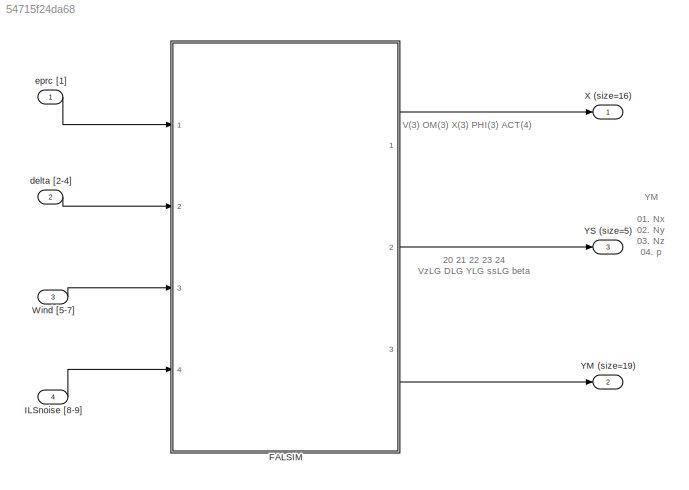
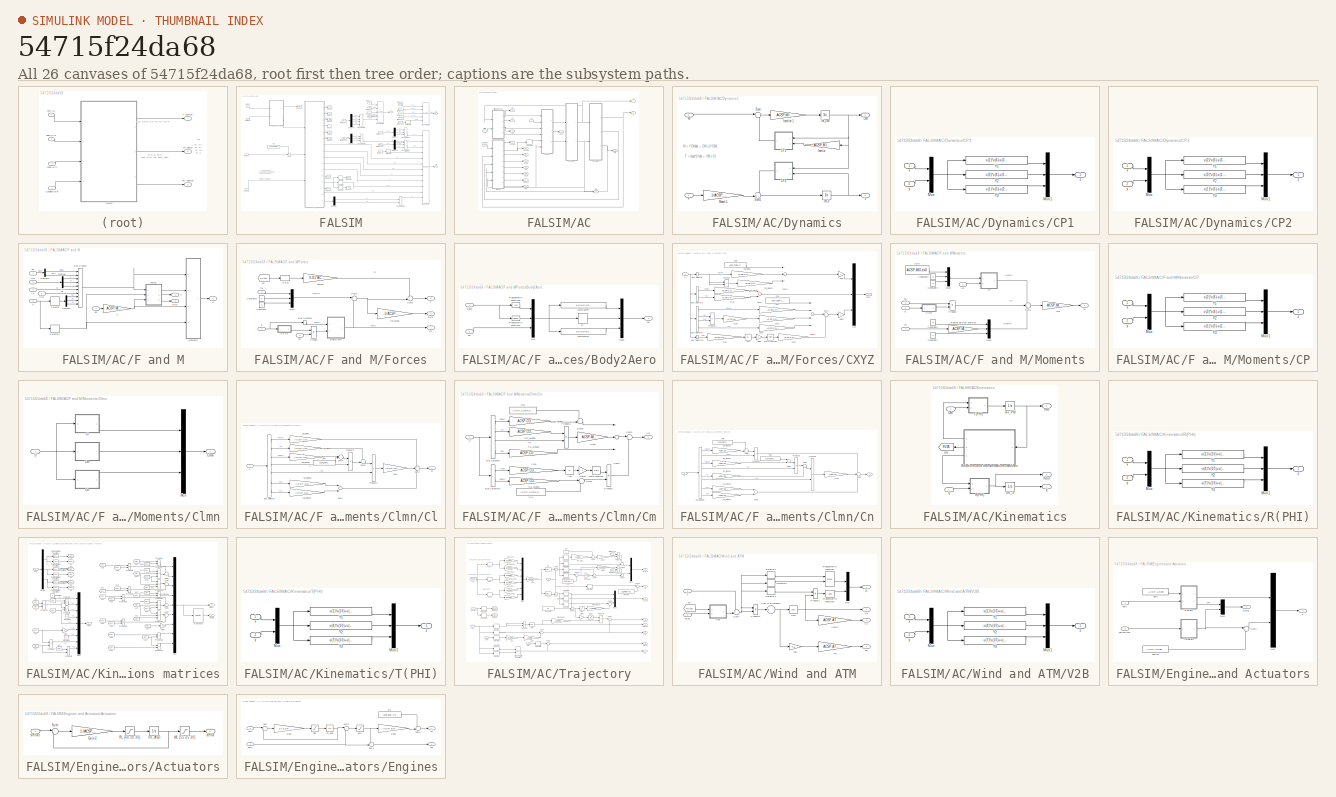
[diagram: thumbnail index - all 26 canvases of the model, root first then tree order]
MODEL slx_54715f24da68
KIND model
CONFIG AbsTol = auto
CONFIG EnableMultiTasking = on
CONFIG FixedStep = 0.05
CONFIG MaxStep = auto
CONFIG MinStep = auto
CONFIG RelTol = 1e-3
CONFIG SampleTimeConstraint = Unconstrained
CONFIG Solver = ode1
CONFIG SolverName = ode1
CONFIG StartTime = 0.0
CONFIG StopTime = 200
BLOCK [SubSystem] FALSIM
  Ports = [4, 3]
  RequestExecContextInheritance = off
BLOCK [SubSystem] FALSIM/AC
  Ports = [3, 16]
  RequestExecContextInheritance = off
BLOCK [Outport] FALSIM/AC/Chi
  IconDisplay = Port number
  Port = 15
BLOCK [SubSystem] FALSIM/AC/Dynamics
  Ports = [2, 2]
  RequestExecContextInheritance = off
BLOCK [SubSystem] FALSIM/AC/Dynamics/CP1
  Ports = [2, 1]
  RequestExecContextInheritance = off
BLOCK [Mux] FALSIM/AC/Dynamics/CP1/Mux
  DisplayOption = bar
  Inputs = 2
  Ports = [2, 1]
BLOCK [Mux] FALSIM/AC/Dynamics/CP1/Mux1
  DisplayOption = bar
  Inputs = 3
  Ports = [3, 1]
BLOCK [Fcn] FALSIM/AC/Dynamics/CP1/Y1
  Expr = u(2)*u(6)-u(3)*u(5)
BLOCK [Fcn] FALSIM/AC/Dynamics/CP1/Y2
  Expr = u(3)*u(4)-u(1)*u(6)
BLOCK [Fcn] FALSIM/AC/Dynamics/CP1/Y3
  Expr = u(1)*u(5)-u(2)*u(4)
BLOCK [Inport] FALSIM/AC/Dynamics/CP1/x
  IconDisplay = Port number
BLOCK [Inport] FALSIM/AC/Dynamics/CP1/y
  IconDisplay = Port number
  Port = 2
BLOCK [Outport] FALSIM/AC/Dynamics/CP1/z
  IconDisplay = Port number
BLOCK [SubSystem] FALSIM/AC/Dynamics/CP2
  Ports = [2, 1]
  RequestExecContextInheritance = off
BLOCK [Mux] FALSIM/AC/Dynamics/CP2/Mux
  DisplayOption = bar
  Inputs = 2
  Ports = [2, 1]
BLOCK [Mux] FALSIM/AC/Dynamics/CP2/Mux1
  DisplayOption = bar
  Inputs = 3
  Ports = [3, 1]
BLOCK [Fcn] FALSIM/AC/Dynamics/CP2/Y1
  Expr = u(2)*u(6)-u(3)*u(5)
BLOCK [Fcn] FALSIM/AC/Dynamics/CP2/Y2
  Expr = u(3)*u(4)-u(1)*u(6)
BLOCK [Fcn] FALSIM/AC/Dynamics/CP2/Y3
  Expr = u(1)*u(5)-u(2)*u(4)
BLOCK [Inport] FALSIM/AC/Dynamics/CP2/x
  IconDisplay = Port number
BLOCK [Inport] FALSIM/AC/Dynamics/CP2/y
  IconDisplay = Port number
  Port = 2
BLOCK [Outport] FALSIM/AC/Dynamics/CP2/z
  IconDisplay = Port number
BLOCK [Inport] FALSIM/AC/Dynamics/F
  IconDisplay = Port number
BLOCK [Gain] FALSIM/AC/Dynamics/Inertia
  Gain = ACSP.MIG.I
  Multiplication = Matrix(K*u)
  OutDataTypeStr = Inherit: Inherit via internal rule
  ParamDataTypeStr = Inherit: Inherit via internal rule
  SaturateOnIntegerOverflow = off
BLOCK [Gain] FALSIM/AC/Dynamics/Inertia^-1
  Gain = ACSP.MIG.J
  Multiplication = Matrix(K*u)
  OutDataTypeStr = Inherit: Inherit via internal rule
  ParamDataTypeStr = Inherit: Inherit via internal rule
  SaturateOnIntegerOverflow = off
BLOCK [Integrator] FALSIM/AC/Dynamics/Int_OM
  ContinuousStateAttributes = 'OM'
  InitialCondition = ACSP.X0.OM
  Ports = [1, 1]
BLOCK [Integrator] FALSIM/AC/Dynamics/Int_V
  ContinuousStateAttributes = 'V'
  InitialCondition = ACSP.X0.V
  Ports = [1, 1]
BLOCK [Inport] FALSIM/AC/Dynamics/M
  IconDisplay = Port number
  Port = 2
BLOCK [Gain] FALSIM/AC/Dynamics/Mass^-1
  Gain = 1/ACSP.MIG.mass
  OutDataTypeStr = Inherit: Inherit via internal rule
  ParamDataTypeStr = Inherit: Inherit via internal rule
  SaturateOnIntegerOverflow = off
BLOCK [Outport] FALSIM/AC/Dynamics/OM
  IconDisplay = Port number
  Port = 2
BLOCK [Sum] FALSIM/AC/Dynamics/Sum
  IconShape = round
  InputSameDT = off
  Inputs = |+-
  OutDataTypeStr = Inherit: Inherit via internal rule
  Ports = [2, 1]
  SaturateOnIntegerOverflow = off
BLOCK [Sum] FALSIM/AC/Dynamics/Sum1
  IconShape = round
  InputSameDT = off
  Inputs = -+|
  OutDataTypeStr = Inherit: Inherit via internal rule
  Ports = [2, 1]
  SaturateOnIntegerOverflow = off
BLOCK [Outport] FALSIM/AC/Dynamics/V
  IconDisplay = Port number
BLOCK [SubSystem] FALSIM/AC/F and M
  Ports = [6, 3]
  RequestExecContextInheritance = off
BLOCK [BusCreator] FALSIM/AC/F and M/Bus Creator
  DisplayOption = bar
  InheritFromInputs = on
  Inputs = 10
  Ports = [10, 1]
BLOCK [Demux] FALSIM/AC/F and M/Demux1
  DisplayOption = bar
  Outputs = 3
  Ports = [1, 3]
BLOCK [Demux] FALSIM/AC/F and M/Demux2
  DisplayOption = bar
  Outputs = 3
  Ports = [1, 3]
BLOCK [Demux] FALSIM/AC/F and M/Demux3
  DisplayOption = bar
  Outputs = 2
  Ports = [1, 2]
BLOCK [Outport] FALSIM/AC/F and M/F
  IconDisplay = Port number
BLOCK [SubSystem] FALSIM/AC/F and M/Forces
  Ports = [3, 3]
  RequestExecContextInheritance = off
BLOCK [SubSystem] FALSIM/AC/F and M/Forces/Body2Aero
  Ports = [2, 1]
  RequestExecContextInheritance = off
BLOCK [Outport] FALSIM/AC/F and M/Forces/Body2Aero/Fa
  IconDisplay = Port number
BLOCK [Inport] FALSIM/AC/F and M/Forces/Body2Aero/Fb
  IconDisplay = Port number
  Port = 2
BLOCK [Selector] FALSIM/AC/F and M/Forces/Body2Aero/Fy
  IndexOptions = Index vector (dialog)
  Indices = 4
  InputPortWidth = 5
  OutputSizes = 1
  Ports = [1, 1]
BLOCK [Mux] FALSIM/AC/F and M/Forces/Body2Aero/Mux
  DisplayOption = bar
  Inputs = [1 1 3]
  Ports = [3, 1]
BLOCK [Mux] FALSIM/AC/F and M/Forces/Body2Aero/Mux3
  DisplayOption = bar
  Inputs = 3
  Ports = [3, 1]
BLOCK [Trigonometry] FALSIM/AC/F and M/Forces/Body2Aero/Trigonometric Function1
  Ports = [1, 1]
BLOCK [Trigonometry] FALSIM/AC/F and M/Forces/Body2Aero/Trigonometric Function2
  Operator = cos
  Ports = [1, 1]
BLOCK [Inport] FALSIM/AC/F and M/Forces/Body2Aero/alpha
  IconDisplay = Port number
BLOCK [Fcn] FALSIM/AC/F and M/Forces/Body2Aero/ca*Fx-sa*Fz
  Expr = u(1)*u(3)-u(2)*u(5)
BLOCK [Fcn] FALSIM/AC/F and M/Forces/Body2Aero/sa*Fx+ca*Fz
  Expr = u(2)*u(3)+u(1)*u(5)
BLOCK [BusSelector] FALSIM/AC/F and M/Forces/Bus Selector
  OutputAsBus = off
  OutputSignals = alpha
  Ports = [1, 1]
BLOCK [SubSystem] FALSIM/AC/F and M/Forces/CXYZ
  Ports = [1, 1]
  RequestExecContextInheritance = off
BLOCK [Abs] FALSIM/AC/F and M/Forces/CXYZ/Abs
  SaturateOnIntegerOverflow = off
BLOCK [BusSelector] FALSIM/AC/F and M/Forces/CXYZ/Bus Selector
  OutputAsBus = off
  OutputSignals = alpha
  Ports = [1, 1]
BLOCK [BusSelector] FALSIM/AC/F and M/Forces/CXYZ/Bus Selector1
  OutputAsBus = off
  OutputSignals = beta,dr
  Ports = [1, 2]
BLOCK [BusSelector] FALSIM/AC/F and M/Forces/CXYZ/Bus Selector2
  OutputAsBus = off
  OutputSignals = alpha,q,Va,de
  Ports = [1, 4]
BLOCK [BusSelector] FALSIM/AC/F and M/Forces/CXYZ/Bus Selector3
  OutputAsBus = off
  OutputSignals = Hlg
  Ports = [1, 1]
BLOCK [Constant] FALSIM/AC/F and M/Forces/CXYZ/CD0
  Value = ACSP.COEF.CD.CD0
BLOCK [Gain] FALSIM/AC/F and M/Forces/CXYZ/CD_alpha
  Gain = ACSP.COEF.CD.CDa
  OutDataTypeStr = Inherit: Inherit via internal rule
  ParamDataTypeStr = Inherit: Inherit via internal rule
  SaturateOnIntegerOverflow = off
BLOCK [Gain] FALSIM/AC/F and M/Forces/CXYZ/CD_alpha2
  Gain = ACSP.COEF.CD.CDa2
  OutDataTypeStr = Inherit: Inherit via internal rule
  ParamDataTypeStr = Inherit: Inherit via internal rule
  SaturateOnIntegerOverflow = off
BLOCK [Constant] FALSIM/AC/F and M/Forces/CXYZ/CL0
  Value = ACSP.COEF.CL.CL0
BLOCK [Gain] FALSIM/AC/F and M/Forces/CXYZ/CLa
  Gain = ACSP.COEF.CL.CLa
  OutDataTypeStr = Inherit: Inherit via internal rule
  ParamDataTypeStr = Inherit: Inherit via internal rule
  SaturateOnIntegerOverflow = off
BLOCK [Gain] FALSIM/AC/F and M/Forces/CXYZ/CLa1
  Gain = ACSP.COEF.CL.lambdah
  OutDataTypeStr = Inherit: Inherit via internal rule
  ParamDataTypeStr = Inherit: Inherit via internal rule
  SaturateOnIntegerOverflow = off
BLOCK [Gain] FALSIM/AC/F and M/Forces/CXYZ/CLa2
  Gain = ACSP.COEF.CL.CLh
  OutDataTypeStr = Inherit: Inherit via internal rule
  ParamDataTypeStr = Inherit: Inherit via internal rule
  SaturateOnIntegerOverflow = off
BLOCK [Gain] FALSIM/AC/F and M/Forces/CXYZ/CLa3
  Gain = ACSP.COEF.CL.CLde
  OutDataTypeStr = Inherit: Inherit via internal rule
  ParamDataTypeStr = Inherit: Inherit via internal rule
  SaturateOnIntegerOverflow = off
BLOCK [Gain] FALSIM/AC/F and M/Forces/CXYZ/CLa4
  Gain = ACSP.COEF.CL.CLq
  OutDataTypeStr = Inherit: Inherit via internal rule
  ParamDataTypeStr = Inherit: Inherit via internal rule
  SaturateOnIntegerOverflow = off
BLOCK [Gain] FALSIM/AC/F and M/Forces/CXYZ/CLa5
  Gain = ACSP.MIG.Lref
  OutDataTypeStr = Inherit: Inherit via internal rule
  ParamDataTypeStr = Inherit: Inherit via internal rule
  SaturateOnIntegerOverflow = off
BLOCK [Outport] FALSIM/AC/F and M/Forces/CXYZ/CXYZ
  IconDisplay = Port number
BLOCK [Gain] FALSIM/AC/F and M/Forces/CXYZ/CY_beta
  Gain = ACSP.COEF.CY.CYb
  OutDataTypeStr = Inherit: Inherit via internal rule
  ParamDataTypeStr = Inherit: Inherit via internal rule
  SaturateOnIntegerOverflow = off
BLOCK [Gain] FALSIM/AC/F and M/Forces/CXYZ/CY_dr
  Gain = ACSP.COEF.CY.CYdr
  OutDataTypeStr = Inherit: Inherit via internal rule
  ParamDataTypeStr = Inherit: Inherit via internal rule
  SaturateOnIntegerOverflow = off
BLOCK [Gain] FALSIM/AC/F and M/Forces/CXYZ/Gain
  Gain = -1
  OutDataTypeStr = Inherit: Inherit via internal rule
  ParamDataTypeStr = Inherit: Inherit via internal rule
  SaturateOnIntegerOverflow = off
BLOCK [Gain] FALSIM/AC/F and M/Forces/CXYZ/Gain1
  Gain = -1
  OutDataTypeStr = Inherit: Inherit via internal rule
  ParamDataTypeStr = Inherit: Inherit via internal rule
  SaturateOnIntegerOverflow = off
BLOCK [Gain] FALSIM/AC/F and M/Forces/CXYZ/Gain2
  Gain = -1
  OutDataTypeStr = Inherit: Inherit via internal rule
  ParamDataTypeStr = Inherit: Inherit via internal rule
  SaturateOnIntegerOverflow = off
BLOCK [Math] FALSIM/AC/F and M/Forces/CXYZ/Math Function
  Ports = [1, 1]
BLOCK [Mux] FALSIM/AC/F and M/Forces/CXYZ/Mux
  DisplayOption = bar
  Inputs = 3
  Ports = [3, 1]
BLOCK [Product] FALSIM/AC/F and M/Forces/CXYZ/Product
  InputSameDT = off
  OutDataTypeStr = Inherit: Inherit via internal rule
  Ports = [2, 1]
  SaturateOnIntegerOverflow = off
BLOCK [Product] FALSIM/AC/F and M/Forces/CXYZ/Product1
  InputSameDT = off
  Inputs = */
  OutDataTypeStr = Inherit: Inherit via internal rule
  Ports = [2, 1]
  SaturateOnIntegerOverflow = off
BLOCK [Sum] FALSIM/AC/F and M/Forces/CXYZ/Sum1
  InputSameDT = off
  OutDataTypeStr = Inherit: Inherit via internal rule
  Ports = [2, 1]
  SaturateOnIntegerOverflow = off
BLOCK [Sum] FALSIM/AC/F and M/Forces/CXYZ/Sum2
  InputSameDT = off
  Inputs = +++
  OutDataTypeStr = Inherit: Inherit via internal rule
  Ports = [3, 1]
  SaturateOnIntegerOverflow = off
BLOCK [Sum] FALSIM/AC/F and M/Forces/CXYZ/Sum3
  InputSameDT = off
  Inputs = ++++
  OutDataTypeStr = Inherit: Inherit via internal rule
  Ports = [4, 1]
  SaturateOnIntegerOverflow = off
BLOCK [Sum] FALSIM/AC/F and M/Forces/CXYZ/Sum4
  IconShape = round
  InputSameDT = off
  Inputs = |++
  OutDataTypeStr = Inherit: Inherit via internal rule
  Ports = [2, 1]
  SaturateOnIntegerOverflow = off
BLOCK [Inport] FALSIM/AC/F and M/Forces/CXYZ/U
  IconDisplay = Port number
BLOCK [Constant] FALSIM/AC/F and M/Forces/Constant1
  Value = 0
BLOCK [Constant] FALSIM/AC/F and M/Forces/Constant2
  Value = 0
BLOCK [Inport] FALSIM/AC/F and M/Forces/E
  IconDisplay = Port number
BLOCK [Outport] FALSIM/AC/F and M/Forces/F
  IconDisplay = Port number
  Port = 2
BLOCK [Outport] FALSIM/AC/F and M/Forces/Fa
  IconDisplay = Port number
BLOCK [Mux] FALSIM/AC/F and M/Forces/Mux2
  DisplayOption = bar
  Inputs = 3
  Ports = [3, 1]
BLOCK [Outport] FALSIM/AC/F and M/Forces/Nxyz
  IconDisplay = Port number
  Port = 3
BLOCK [Product] FALSIM/AC/F and M/Forces/Product
  InputSameDT = off
  OutDataTypeStr = Inherit: Inherit via internal rule
  Ports = [2, 1]
  SaturateOnIntegerOverflow = off
BLOCK [Sum] FALSIM/AC/F and M/Forces/Sum1
  IconShape = round
  InputSameDT = off
  Inputs = ++|
  OutDataTypeStr = Inherit: Inherit via internal rule
  Ports = [2, 1]
  SaturateOnIntegerOverflow = off
BLOCK [Sum] FALSIM/AC/F and M/Forces/Sum2
  IconShape = round
  InputSameDT = off
  Inputs = |++
  OutDataTypeStr = Inherit: Inherit via internal rule
  Ports = [2, 1]
  SaturateOnIntegerOverflow = off
BLOCK [Inport] FALSIM/AC/F and M/Forces/TH
  IconDisplay = Port number
  Port = 2
BLOCK [Selector] FALSIM/AC/F and M/Forces/[3 6 9]
  IndexOptions = Index vector (dialog)
  Indices = [3 6 9]
  InputPortWidth = 9
  OutputSizes = 1
  Ports = [1, 1]
BLOCK [Gain] FALSIM/AC/F and M/Forces/gMass
  Gain = 9.81*ACSP.MIG.mass
  OutDataTypeStr = Inherit: Inherit via internal rule
  ParamDataTypeStr = Inherit: Inherit via internal rule
  SaturateOnIntegerOverflow = off
BLOCK [Gain] FALSIM/AC/F and M/Forces/inv_Mass
  Gain = -1/ACSP.MIG.mass
  OutDataTypeStr = Inherit: Inherit via internal rule
  ParamDataTypeStr = Inherit: Inherit via internal rule
  SaturateOnIntegerOverflow = off
BLOCK [Inport] FALSIM/AC/F and M/Forces/qS
  IconDisplay = Port number
  Port = 3
BLOCK [From] FALSIM/AC/F and M/Forces/u2
  GotoTag = RV2B
  TagVisibility = global
BLOCK [Inport] FALSIM/AC/F and M/HLG
  IconDisplay = Port number
  Port = 5
BLOCK [Outport] FALSIM/AC/F and M/M
  IconDisplay = Port number
  Port = 3
BLOCK [SubSystem] FALSIM/AC/F and M/Moments
  Ports = [4, 1]
  RequestExecContextInheritance = off
BLOCK [Constant] FALSIM/AC/F and M/Moments/CD0
  Value = ACSP.MIG.dxG
BLOCK [SubSystem] FALSIM/AC/F and M/Moments/CP
  Ports = [2, 1]
  RequestExecContextInheritance = off
BLOCK [Mux] FALSIM/AC/F and M/Moments/CP/Mux
  DisplayOption = bar
  Inputs = 2
  Ports = [2, 1]
BLOCK [Mux] FALSIM/AC/F and M/Moments/CP/Mux1
  DisplayOption = bar
  Inputs = 3
  Ports = [3, 1]
BLOCK [Fcn] FALSIM/AC/F and M/Moments/CP/Y1
  Expr = u(2)*u(6)-u(3)*u(5)
BLOCK [Fcn] FALSIM/AC/F and M/Moments/CP/Y2
  Expr = u(3)*u(4)-u(1)*u(6)
BLOCK [Fcn] FALSIM/AC/F and M/Moments/CP/Y3
  Expr = u(1)*u(5)-u(2)*u(4)
BLOCK [Inport] FALSIM/AC/F and M/Moments/CP/x
  IconDisplay = Port number
BLOCK [Inport] FALSIM/AC/F and M/Moments/CP/y
  IconDisplay = Port number
  Port = 2
BLOCK [Outport] FALSIM/AC/F and M/Moments/CP/z
  IconDisplay = Port number
BLOCK [SubSystem] FALSIM/AC/F and M/Moments/Clmn
  Ports = [1, 1]
  RequestExecContextInheritance = off
BLOCK [SubSystem] FALSIM/AC/F and M/Moments/Clmn/Cl
  Ports = [1, 1]
  RequestExecContextInheritance = off
BLOCK [BusSelector] FALSIM/AC/F and M/Moments/Clmn/Cl/Bus Selector
  OutputAsBus = off
  OutputSignals = beta,p,alpha,r,Va,da,dr
  Ports = [1, 7]
BLOCK [Constant] FALSIM/AC/F and M/Moments/Clmn/Cl/CD0
  Value = ACSP.COEF.Cl.Clr0
BLOCK [Gain] FALSIM/AC/F and M/Moments/Clmn/Cl/CD_alpha
  Gain = ACSP.COEF.Cl.Clb
  OutDataTypeStr = Inherit: Inherit via internal rule
  ParamDataTypeStr = Inherit: Inherit via internal rule
  SaturateOnIntegerOverflow = off
BLOCK [Gain] FALSIM/AC/F and M/Moments/Clmn/Cl/CD_alpha1
  Gain = ACSP.COEF.Cl.Clp
  OutDataTypeStr = Inherit: Inherit via internal rule
  ParamDataTypeStr = Inherit: Inherit via internal rule
  SaturateOnIntegerOverflow = off
BLOCK [Gain] FALSIM/AC/F and M/Moments/Clmn/Cl/CD_alpha2
  Gain = ACSP.COEF.Cl.Clra
  OutDataTypeStr = Inherit: Inherit via internal rule
  ParamDataTypeStr = Inherit: Inherit via internal rule
  SaturateOnIntegerOverflow = off
BLOCK [Gain] FALSIM/AC/F and M/Moments/Clmn/Cl/CD_alpha3
  Gain = ACSP.COEF.Cl.Clda
  OutDataTypeStr = Inherit: Inherit via internal rule
  ParamDataTypeStr = Inherit: Inherit via internal rule
  SaturateOnIntegerOverflow = off
BLOCK [Gain] FALSIM/AC/F and M/Moments/Clmn/Cl/CD_alpha4
  Gain = ACSP.COEF.Cl.Cldr
  OutDataTypeStr = Inherit: Inherit via internal rule
  ParamDataTypeStr = Inherit: Inherit via internal rule
  SaturateOnIntegerOverflow = off
BLOCK [Gain] FALSIM/AC/F and M/Moments/Clmn/Cl/CLa3
  Gain = ACSP.MIG.Lref
  OutDataTypeStr = Inherit: Inherit via internal rule
  ParamDataTypeStr = Inherit: Inherit via internal rule
  SaturateOnIntegerOverflow = off
BLOCK [Outport] FALSIM/AC/F and M/Moments/Clmn/Cl/Cl
  IconDisplay = Port number
BLOCK [Product] FALSIM/AC/F and M/Moments/Clmn/Cl/Product1
  InputSameDT = off
  OutDataTypeStr = Inherit: Inherit via internal rule
  Ports = [2, 1]
  SaturateOnIntegerOverflow = off
BLOCK [Product] FALSIM/AC/F and M/Moments/Clmn/Cl/Product2
  InputSameDT = off
  Inputs = */
  OutDataTypeStr = Inherit: Inherit via internal rule
  Ports = [2, 1]
  SaturateOnIntegerOverflow = off
BLOCK [Sum] FALSIM/AC/F and M/Moments/Clmn/Cl/Sum1
  InputSameDT = off
  OutDataTypeStr = Inherit: Inherit via internal rule
  Ports = [2, 1]
  SaturateOnIntegerOverflow = off
BLOCK [Sum] FALSIM/AC/F and M/Moments/Clmn/Cl/Sum2
  IconShape = round
  InputSameDT = off
  Inputs = +++
  OutDataTypeStr = Inherit: Inherit via internal rule
  Ports = [3, 1]
  SaturateOnIntegerOverflow = off
BLOCK [Sum] FALSIM/AC/F and M/Moments/Clmn/Cl/Sum4
  IconShape = round
  InputSameDT = off
  Inputs = |++
  OutDataTypeStr = Inherit: Inherit via internal rule
  Ports = [2, 1]
  SaturateOnIntegerOverflow = off
BLOCK [Sum] FALSIM/AC/F and M/Moments/Clmn/Cl/Sum5
  IconShape = round
  InputSameDT = off
  Inputs = ++|
  OutDataTypeStr = Inherit: Inherit via internal rule
  Ports = [2, 1]
  SaturateOnIntegerOverflow = off
BLOCK [Inport] FALSIM/AC/F and M/Moments/Clmn/Cl/U
  IconDisplay = Port number
BLOCK [Outport] FALSIM/AC/F and M/Moments/Clmn/Clmn
  IconDisplay = Port number
BLOCK [SubSystem] FALSIM/AC/F and M/Moments/Clmn/Cm
  Ports = [1, 1]
  RequestExecContextInheritance = off
BLOCK [Abs] FALSIM/AC/F and M/Moments/Clmn/Cm/Abs
  SaturateOnIntegerOverflow = off
BLOCK [BusSelector] FALSIM/AC/F and M/Moments/Clmn/Cm/Bus Selector
  OutputAsBus = off
  OutputSignals = alpha,q,Va,de
  Ports = [1, 4]
BLOCK [BusSelector] FALSIM/AC/F and M/Moments/Clmn/Cm/Bus Selector3
  OutputAsBus = off
  OutputSignals = Hlg,alpha
  Ports = [1, 2]
BLOCK [Gain] FALSIM/AC/F and M/Moments/Clmn/Cm/CD_alpha
  Gain = ACSP.COEF.Cm.Cma
  OutDataTypeStr = Inherit: Inherit via internal rule
  ParamDataTypeStr = Inherit: Inherit via internal rule
  SaturateOnIntegerOverflow = off
BLOCK [Gain] FALSIM/AC/F and M/Moments/Clmn/Cm/CD_alpha5
  Gain = ACSP.COEF.Cm.Cmq
  OutDataTypeStr = Inherit: Inherit via internal rule
  ParamDataTypeStr = Inherit: Inherit via internal rule
  SaturateOnIntegerOverflow = off
BLOCK [Gain] FALSIM/AC/F and M/Moments/Clmn/Cm/CD_alpha6
  Gain = ACSP.COEF.Cm.Cmde
  OutDataTypeStr = Inherit: Inherit via internal rule
  ParamDataTypeStr = Inherit: Inherit via internal rule
  SaturateOnIntegerOverflow = off
BLOCK [Gain] FALSIM/AC/F and M/Moments/Clmn/Cm/CD_alpha7
  Gain = ACSP.COEF.Cm.Cmha
  OutDataTypeStr = Inherit: Inherit via internal rule
  ParamDataTypeStr = Inherit: Inherit via internal rule
  SaturateOnIntegerOverflow = off
BLOCK [Constant] FALSIM/AC/F and M/Moments/Clmn/Cm/CL0
  Value = ACSP.COEF.Cm.Cm0
BLOCK [Constant] FALSIM/AC/F and M/Moments/Clmn/Cm/CL1
  Value = ACSP.COEF.Cm.Cmh0
BLOCK [Gain] FALSIM/AC/F and M/Moments/Clmn/Cm/CLa1
  Gain = ACSP.COEF.Cm.lambdah
  OutDataTypeStr = Inherit: Inherit via internal rule
  ParamDataTypeStr = Inherit: Inherit via internal rule
  SaturateOnIntegerOverflow = off
BLOCK [Gain] FALSIM/AC/F and M/Moments/Clmn/Cm/CLa3
  Gain = ACSP.MIG.Lref
  OutDataTypeStr = Inherit: Inherit via internal rule
  ParamDataTypeStr = Inherit: Inherit via internal rule
  SaturateOnIntegerOverflow = off
BLOCK [Outport] FALSIM/AC/F and M/Moments/Clmn/Cm/Cm
  IconDisplay = Port number
BLOCK [Gain] FALSIM/AC/F and M/Moments/Clmn/Cm/Gain2
  Gain = -1
  OutDataTypeStr = Inherit: Inherit via internal rule
  ParamDataTypeStr = Inherit: Inherit via internal rule
  SaturateOnIntegerOverflow = off
BLOCK [Math] FALSIM/AC/F and M/Moments/Clmn/Cm/Math Function
  Ports = [1, 1]
BLOCK [Product] FALSIM/AC/F and M/Moments/Clmn/Cm/Product1
  InputSameDT = off
  OutDataTypeStr = Inherit: Inherit via internal rule
  Ports = [2, 1]
  SaturateOnIntegerOverflow = off
BLOCK [Product] FALSIM/AC/F and M/Moments/Clmn/Cm/Product2
  InputSameDT = off
  Inputs = */
  OutDataTypeStr = Inherit: Inherit via internal rule
  Ports = [2, 1]
  SaturateOnIntegerOverflow = off
BLOCK [Sum] FALSIM/AC/F and M/Moments/Clmn/Cm/Sum1
  InputSameDT = off
  Inputs = +++
  OutDataTypeStr = Inherit: Inherit via internal rule
  Ports = [3, 1]
  SaturateOnIntegerOverflow = off
BLOCK [Sum] FALSIM/AC/F and M/Moments/Clmn/Cm/Sum2
  IconShape = round
  InputSameDT = off
  Inputs = |++
  OutDataTypeStr = Inherit: Inherit via internal rule
  Ports = [2, 1]
  SaturateOnIntegerOverflow = off
BLOCK [Sum] FALSIM/AC/F and M/Moments/Clmn/Cm/Sum3
  IconShape = round
  InputSameDT = off
  Inputs = |++
  OutDataTypeStr = Inherit: Inherit via internal rule
  Ports = [2, 1]
  SaturateOnIntegerOverflow = off
BLOCK [Sum] FALSIM/AC/F and M/Moments/Clmn/Cm/Sum5
  IconShape = round
  InputSameDT = off
  Inputs = ++|
  OutDataTypeStr = Inherit: Inherit via internal rule
  Ports = [2, 1]
  SaturateOnIntegerOverflow = off
BLOCK [Inport] FALSIM/AC/F and M/Moments/Clmn/Cm/U
  IconDisplay = Port number
BLOCK [SubSystem] FALSIM/AC/F and M/Moments/Clmn/Cn
  Ports = [1, 1]
  RequestExecContextInheritance = off
BLOCK [BusSelector] FALSIM/AC/F and M/Moments/Clmn/Cn/Bus Selector
  OutputAsBus = off
  OutputSignals = alpha,beta,alpha,p,r,Va,da,dr
  Ports = [1, 8]
BLOCK [Constant] FALSIM/AC/F and M/Moments/Clmn/Cn/CD0
  Value = ACSP.COEF.Cn.Cnb0
BLOCK [Constant] FALSIM/AC/F and M/Moments/Clmn/Cn/CD1
  Value = ACSP.COEF.Cn.Cnp0
BLOCK [Gain] FALSIM/AC/F and M/Moments/Clmn/Cn/CD_alpha1
  Gain = ACSP.COEF.Cn.Cnr
  OutDataTypeStr = Inherit: Inherit via internal rule
  ParamDataTypeStr = Inherit: Inherit via internal rule
  SaturateOnIntegerOverflow = off
BLOCK [Gain] FALSIM/AC/F and M/Moments/Clmn/Cn/CD_alpha2
  Gain = ACSP.COEF.Cn.Cnba
  OutDataTypeStr = Inherit: Inherit via internal rule
  ParamDataTypeStr = Inherit: Inherit via internal rule
  SaturateOnIntegerOverflow = off
BLOCK [Gain] FALSIM/AC/F and M/Moments/Clmn/Cn/CD_alpha3
  Gain = ACSP.COEF.Cn.Cnda
  OutDataTypeStr = Inherit: Inherit via internal rule
  ParamDataTypeStr = Inherit: Inherit via internal rule
  SaturateOnIntegerOverflow = off
BLOCK [Gain] FALSIM/AC/F and M/Moments/Clmn/Cn/CD_alpha4
  Gain = ACSP.COEF.Cn.Cndr
  OutDataTypeStr = Inherit: Inherit via internal rule
  ParamDataTypeStr = Inherit: Inherit via internal rule
  SaturateOnIntegerOverflow = off
BLOCK [Gain] FALSIM/AC/F and M/Moments/Clmn/Cn/CD_alpha5
  Gain = ACSP.COEF.Cn.Cnpa
  OutDataTypeStr = Inherit: Inherit via internal rule
  ParamDataTypeStr = Inherit: Inherit via internal rule
  SaturateOnIntegerOverflow = off
BLOCK [Gain] FALSIM/AC/F and M/Moments/Clmn/Cn/CLa3
  Gain = ACSP.MIG.Lref
  OutDataTypeStr = Inherit: Inherit via internal rule
  ParamDataTypeStr = Inherit: Inherit via internal rule
  SaturateOnIntegerOverflow = off
BLOCK [Outport] FALSIM/AC/F and M/Moments/Clmn/Cn/Cn
  IconDisplay = Port number
BLOCK [Product] FALSIM/AC/F and M/Moments/Clmn/Cn/Product1
  InputSameDT = off
  OutDataTypeStr = Inherit: Inherit via internal rule
  Ports = [2, 1]
  SaturateOnIntegerOverflow = off
BLOCK [Product] FALSIM/AC/F and M/Moments/Clmn/Cn/Product2
  InputSameDT = off
  Inputs = */
  OutDataTypeStr = Inherit: Inherit via internal rule
  Ports = [2, 1]
  SaturateOnIntegerOverflow = off
BLOCK [Product] FALSIM/AC/F and M/Moments/Clmn/Cn/Product3
  InputSameDT = off
  OutDataTypeStr = Inherit: Inherit via internal rule
  Ports = [2, 1]
  SaturateOnIntegerOverflow = off
BLOCK [Sum] FALSIM/AC/F and M/Moments/Clmn/Cn/Sum1
  InputSameDT = off
  OutDataTypeStr = Inherit: Inherit via internal rule
  Ports = [2, 1]
  SaturateOnIntegerOverflow = off
BLOCK [Sum] FALSIM/AC/F and M/Moments/Clmn/Cn/Sum2
  IconShape = round
  InputSameDT = off
  Inputs = +++
  OutDataTypeStr = Inherit: Inherit via internal rule
  Ports = [3, 1]
  SaturateOnIntegerOverflow = off
BLOCK [Sum] FALSIM/AC/F and M/Moments/Clmn/Cn/Sum3
  IconShape = round
  InputSameDT = off
  Inputs = |++
  OutDataTypeStr = Inherit: Inherit via internal rule
  Ports = [2, 1]
  SaturateOnIntegerOverflow = off
BLOCK [Sum] FALSIM/AC/F and M/Moments/Clmn/Cn/Sum5
  IconShape = round
  InputSameDT = off
  Inputs = ++|
  OutDataTypeStr = Inherit: Inherit via internal rule
  Ports = [2, 1]
  SaturateOnIntegerOverflow = off
BLOCK [Sum] FALSIM/AC/F and M/Moments/Clmn/Cn/Sum6
  InputSameDT = off
  OutDataTypeStr = Inherit: Inherit via internal rule
  Ports = [2, 1]
  SaturateOnIntegerOverflow = off
BLOCK [Inport] FALSIM/AC/F and M/Moments/Clmn/Cn/U
  IconDisplay = Port number
BLOCK [Mux] FALSIM/AC/F and M/Moments/Clmn/Mux
  DisplayOption = bar
  Inputs = 3
  Ports = [3, 1]
BLOCK [Inport] FALSIM/AC/F and M/Moments/Clmn/U
  IconDisplay = Port number
BLOCK [Constant] FALSIM/AC/F and M/Moments/Constant1
  Value = 0
BLOCK [Constant] FALSIM/AC/F and M/Moments/Constant2
  Value = 0
BLOCK [Constant] FALSIM/AC/F and M/Moments/Constant3
  Value = 0
BLOCK [Constant] FALSIM/AC/F and M/Moments/Constant4
  Value = 0
BLOCK [Inport] FALSIM/AC/F and M/Moments/E
  IconDisplay = Port number
BLOCK [Gain] FALSIM/AC/F and M/Moments/Engine vertical position
  Gain = ACSP.MIG.dzE
  OutDataTypeStr = Inherit: Inherit via internal rule
  ParamDataTypeStr = Inherit: Inherit via internal rule
  SaturateOnIntegerOverflow = off
BLOCK [Inport] FALSIM/AC/F and M/Moments/Fa
  IconDisplay = Port number
  Port = 2
BLOCK [Gain] FALSIM/AC/F and M/Moments/Lref
  Gain = ACSP.MIG.Lref
  OutDataTypeStr = Inherit: Inherit via internal rule
  ParamDataTypeStr = Inherit: Inherit via internal rule
  SaturateOnIntegerOverflow = off
BLOCK [Outport] FALSIM/AC/F and M/Moments/M
  IconDisplay = Port number
BLOCK [Mux] FALSIM/AC/F and M/Moments/Mux1
  DisplayOption = bar
  Inputs = 3
  Ports = [3, 1]
BLOCK [Mux] FALSIM/AC/F and M/Moments/Mux2
  DisplayOption = bar
  Inputs = 3
  Ports = [3, 1]
BLOCK [Product] FALSIM/AC/F and M/Moments/Product
  InputSameDT = off
  OutDataTypeStr = Inherit: Inherit via internal rule
  Ports = [2, 1]
  SaturateOnIntegerOverflow = off
BLOCK [Sum] FALSIM/AC/F and M/Moments/Sum1
  IconShape = round
  InputSameDT = off
  Inputs = +++
  OutDataTypeStr = Inherit: Inherit via internal rule
  Ports = [3, 1]
  SaturateOnIntegerOverflow = off
BLOCK [Inport] FALSIM/AC/F and M/Moments/TH
  IconDisplay = Port number
  Port = 4
BLOCK [Inport] FALSIM/AC/F and M/Moments/qS
  IconDisplay = Port number
  Port = 3
BLOCK [Outport] FALSIM/AC/F and M/Nxyz
  IconDisplay = Port number
  Port = 2
BLOCK [Inport] FALSIM/AC/F and M/OM
  IconDisplay = Port number
  Port = 6
BLOCK [Gain] FALSIM/AC/F and M/S
  Gain = ACSP.MIG.Sref
  OutDataTypeStr = Inherit: Inherit via internal rule
  ParamDataTypeStr = Inherit: Inherit via internal rule
  SaturateOnIntegerOverflow = off
BLOCK [Selector] FALSIM/AC/F and M/Selector
  IndexOptions = Index vector (dialog)
  Indices = [2 3 4]
  InputPortWidth = 4
  OutputSizes = 1
  Ports = [1, 1]
BLOCK [Selector] FALSIM/AC/F and M/Selector1
  IndexOptions = Index vector (dialog)
  Indices = [1]
  InputPortWidth = 4
  OutputSizes = 1
  Ports = [1, 1]
BLOCK [Inport] FALSIM/AC/F and M/U
  IconDisplay = Port number
  Port = 2
BLOCK [Inport] FALSIM/AC/F and M/Va
  IconDisplay = Port number
  Port = 3
BLOCK [Inport] FALSIM/AC/F and M/ab
  IconDisplay = Port number
BLOCK [Inport] FALSIM/AC/F and M/qd
  IconDisplay = Port number
  Port = 4
BLOCK [Outport] FALSIM/AC/H
  IconDisplay = Port number
  Port = 11
BLOCK [Inport] FALSIM/AC/ILSnoise
  IconDisplay = Port number
  Port = 3
  PortDimensions = 2
BLOCK [SubSystem] FALSIM/AC/Kinematics
  Ports = [2, 3]
  RequestExecContextInheritance = off
BLOCK [Integrator] FALSIM/AC/Kinematics/Int_PHI
  ContinuousStateAttributes = 'PHI'
  InitialCondition = ACSP.X0.PHI
  Ports = [1, 1]
BLOCK [Integrator] FALSIM/AC/Kinematics/Int_X
  ContinuousStateAttributes = 'X'
  InitialCondition = ACSP.X0.X
  Ports = [1, 1]
BLOCK [Inport] FALSIM/AC/Kinematics/OM
  IconDisplay = Port number
  Port = 2
BLOCK [Outport] FALSIM/AC/Kinematics/PHI
  IconDisplay = Port number
  Port = 3
BLOCK [SubSystem] FALSIM/AC/Kinematics/R(PHI)
  Ports = [2, 1]
  RequestExecContextInheritance = off
BLOCK [Mux] FALSIM/AC/Kinematics/R(PHI)/Mux
  DisplayOption = bar
  Inputs = 2
  Ports = [2, 1]
BLOCK [Mux] FALSIM/AC/Kinematics/R(PHI)/Mux1
  DisplayOption = bar
  Inputs = 3
  Ports = [3, 1]
BLOCK [Fcn] FALSIM/AC/Kinematics/R(PHI)/Y1
  Expr = u(1)*u(10)+u(2)*u(11)+u(3)*u(12)
BLOCK [Fcn] FALSIM/AC/Kinematics/R(PHI)/Y2
  Expr = u(4)*u(10)+u(5)*u(11)+u(6)*u(12)
BLOCK [Fcn] FALSIM/AC/Kinematics/R(PHI)/Y3
  Expr = u(7)*u(10)+u(8)*u(11)+u(9)*u(12)
BLOCK [Inport] FALSIM/AC/Kinematics/R(PHI)/x
  IconDisplay = Port number
BLOCK [Inport] FALSIM/AC/Kinematics/R(PHI)/y
  IconDisplay = Port number
  Port = 2
BLOCK [Outport] FALSIM/AC/Kinematics/R(PHI)/z
  IconDisplay = Port number
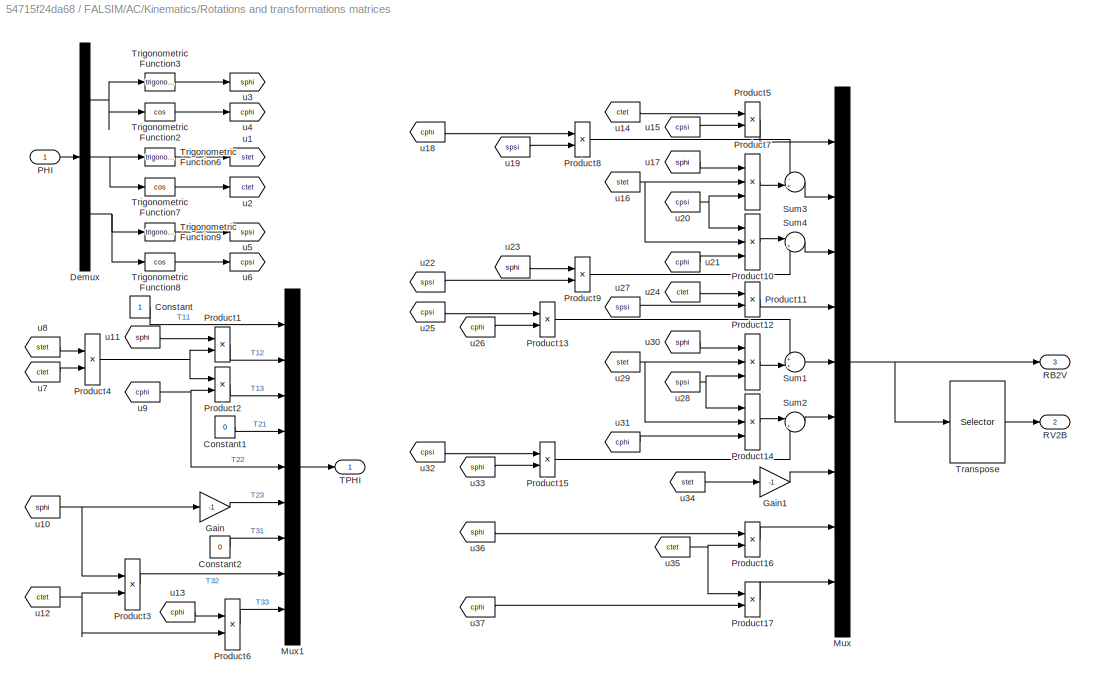
BLOCK [SubSystem] FALSIM/AC/Kinematics/Rotations and transformations matrices
  Ports = [1, 3]
  RequestExecContextInheritance = off
BLOCK [Constant] FALSIM/AC/Kinematics/Rotations and transformations matrices/Constant
BLOCK [Constant] FALSIM/AC/Kinematics/Rotations and transformations matrices/Constant1
  Value = 0
BLOCK [Constant] FALSIM/AC/Kinematics/Rotations and transformations matrices/Constant2
  Value = 0
BLOCK [Demux] FALSIM/AC/Kinematics/Rotations and transformations matrices/Demux
  DisplayOption = bar
  Outputs = 3
  Ports = [1, 3]
BLOCK [Gain] FALSIM/AC/Kinematics/Rotations and transformations matrices/Gain
  Gain = -1
  OutDataTypeStr = Inherit: Inherit via internal rule
  ParamDataTypeStr = Inherit: Inherit via internal rule
  SaturateOnIntegerOverflow = off
BLOCK [Gain] FALSIM/AC/Kinematics/Rotations and transformations matrices/Gain1
  Gain = -1
  OutDataTypeStr = Inherit: Inherit via internal rule
  ParamDataTypeStr = Inherit: Inherit via internal rule
  SaturateOnIntegerOverflow = off
BLOCK [Mux] FALSIM/AC/Kinematics/Rotations and transformations matrices/Mux
  DisplayOption = bar
  Inputs = 9
  Ports = [9, 1]
BLOCK [Mux] FALSIM/AC/Kinematics/Rotations and transformations matrices/Mux1
  DisplayOption = bar
  Inputs = 9
  Ports = [9, 1]
BLOCK [Inport] FALSIM/AC/Kinematics/Rotations and transformations matrices/PHI
  IconDisplay = Port number
BLOCK [Product] FALSIM/AC/Kinematics/Rotations and transformations matrices/Product1
  Ports = [2, 1]
BLOCK [Product] FALSIM/AC/Kinematics/Rotations and transformations matrices/Product10
  Inputs = 3
  Ports = [3, 1]
BLOCK [Product] FALSIM/AC/Kinematics/Rotations and transformations matrices/Product11
  Ports = [2, 1]
BLOCK [Product] FALSIM/AC/Kinematics/Rotations and transformations matrices/Product12
  Inputs = 3
  Ports = [3, 1]
BLOCK [Product] FALSIM/AC/Kinematics/Rotations and transformations matrices/Product13
  Ports = [2, 1]
BLOCK [Product] FALSIM/AC/Kinematics/Rotations and transformations matrices/Product14
  Inputs = 3
  Ports = [3, 1]
BLOCK [Product] FALSIM/AC/Kinematics/Rotations and transformations matrices/Product15
  Ports = [2, 1]
BLOCK [Product] FALSIM/AC/Kinematics/Rotations and transformations matrices/Product16
  Ports = [2, 1]
BLOCK [Product] FALSIM/AC/Kinematics/Rotations and transformations matrices/Product17
  Ports = [2, 1]
BLOCK [Product] FALSIM/AC/Kinematics/Rotations and transformations matrices/Product2
  Ports = [2, 1]
BLOCK [Product] FALSIM/AC/Kinematics/Rotations and transformations matrices/Product3
  Inputs = */
  Ports = [2, 1]
BLOCK [Product] FALSIM/AC/Kinematics/Rotations and transformations matrices/Product4
  Inputs = */
  Ports = [2, 1]
BLOCK [Product] FALSIM/AC/Kinematics/Rotations and transformations matrices/Product5
  Ports = [2, 1]
BLOCK [Product] FALSIM/AC/Kinematics/Rotations and transformations matrices/Product6
  Inputs = */
  Ports = [2, 1]
BLOCK [Product] FALSIM/AC/Kinematics/Rotations and transformations matrices/Product7
  Inputs = 3
  Ports = [3, 1]
BLOCK [Product] FALSIM/AC/Kinematics/Rotations and transformations matrices/Product8
  Ports = [2, 1]
BLOCK [Product] FALSIM/AC/Kinematics/Rotations and transformations matrices/Product9
  Ports = [2, 1]
BLOCK [Outport] FALSIM/AC/Kinematics/Rotations and transformations matrices/RB2V
  IconDisplay = Port number
  Port = 3
BLOCK [Outport] FALSIM/AC/Kinematics/Rotations and transformations matrices/RV2B
  IconDisplay = Port number
  Port = 2
BLOCK [Sum] FALSIM/AC/Kinematics/Rotations and transformations matrices/Sum1
  IconShape = round
  InputSameDT = off
  Inputs = ++|
  OutDataTypeStr = Inherit: Inherit via internal rule
  Ports = [2, 1]
  SaturateOnIntegerOverflow = off
BLOCK [Sum] FALSIM/AC/Kinematics/Rotations and transformations matrices/Sum2
  IconShape = round
  InputSameDT = off
  Inputs = |+-
  OutDataTypeStr = Inherit: Inherit via internal rule
  Ports = [2, 1]
  SaturateOnIntegerOverflow = off
BLOCK [Sum] FALSIM/AC/Kinematics/Rotations and transformations matrices/Sum3
  IconShape = round
  InputSameDT = off
  Inputs = -+|
  OutDataTypeStr = Inherit: Inherit via internal rule
  Ports = [2, 1]
  SaturateOnIntegerOverflow = off
BLOCK [Sum] FALSIM/AC/Kinematics/Rotations and transformations matrices/Sum4
  IconShape = round
  InputSameDT = off
  Inputs = |++
  OutDataTypeStr = Inherit: Inherit via internal rule
  Ports = [2, 1]
  SaturateOnIntegerOverflow = off
BLOCK [Outport] FALSIM/AC/Kinematics/Rotations and transformations matrices/TPHI
  IconDisplay = Port number
BLOCK [Selector] FALSIM/AC/Kinematics/Rotations and transformations matrices/Transpose
  IndexOptions = Index vector (dialog)
  Indices = [1 4 7 2 5 8 3 6 9]
  InputPortWidth = 9
  OutputSizes = 1
  Ports = [1, 1]
BLOCK [Trigonometry] FALSIM/AC/Kinematics/Rotations and transformations matrices/Trigonometric Function2
  Operator = cos
  Ports = [1, 1]
BLOCK [Trigonometry] FALSIM/AC/Kinematics/Rotations and transformations matrices/Trigonometric Function3
  Ports = [1, 1]
BLOCK [Trigonometry] FALSIM/AC/Kinematics/Rotations and transformations matrices/Trigonometric Function6
  Ports = [1, 1]
BLOCK [Trigonometry] FALSIM/AC/Kinematics/Rotations and transformations matrices/Trigonometric Function7
  Operator = cos
  Ports = [1, 1]
BLOCK [Trigonometry] FALSIM/AC/Kinematics/Rotations and transformations matrices/Trigonometric Function8
  Operator = cos
  Ports = [1, 1]
BLOCK [Trigonometry] FALSIM/AC/Kinematics/Rotations and transformations matrices/Trigonometric Function9
  Ports = [1, 1]
BLOCK [Goto] FALSIM/AC/Kinematics/Rotations and transformations matrices/u1
  GotoTag = stet
BLOCK [From] FALSIM/AC/Kinematics/Rotations and transformations matrices/u10
  GotoTag = sphi
BLOCK [From] FALSIM/AC/Kinematics/Rotations and transformations matrices/u11
  GotoTag = sphi
BLOCK [From] FALSIM/AC/Kinematics/Rotations and transformations matrices/u12
  GotoTag = ctet
BLOCK [From] FALSIM/AC/Kinematics/Rotations and transformations matrices/u13
  GotoTag = cphi
BLOCK [From] FALSIM/AC/Kinematics/Rotations and transformations matrices/u14
  GotoTag = ctet
BLOCK [From] FALSIM/AC/Kinematics/Rotations and transformations matrices/u15
  GotoTag = cpsi
BLOCK [From] FALSIM/AC/Kinematics/Rotations and transformations matrices/u16
  GotoTag = stet
BLOCK [From] FALSIM/AC/Kinematics/Rotations and transformations matrices/u17
  GotoTag = sphi
BLOCK [From] FALSIM/AC/Kinematics/Rotations and transformations matrices/u18
  GotoTag = cphi
BLOCK [From] FALSIM/AC/Kinematics/Rotations and transformations matrices/u19
  GotoTag = spsi
BLOCK [Goto] FALSIM/AC/Kinematics/Rotations and transformations matrices/u2
  GotoTag = ctet
BLOCK [From] FALSIM/AC/Kinematics/Rotations and transformations matrices/u20
  GotoTag = cpsi
BLOCK [From] FALSIM/AC/Kinematics/Rotations and transformations matrices/u21
  GotoTag = cphi
BLOCK [From] FALSIM/AC/Kinematics/Rotations and transformations matrices/u22
  GotoTag = spsi
BLOCK [From] FALSIM/AC/Kinematics/Rotations and transformations matrices/u23
  GotoTag = sphi
BLOCK [From] FALSIM/AC/Kinematics/Rotations and transformations matrices/u24
  GotoTag = ctet
BLOCK [From] FALSIM/AC/Kinematics/Rotations and transformations matrices/u25
  GotoTag = cpsi
BLOCK [From] FALSIM/AC/Kinematics/Rotations and transformations matrices/u26
  GotoTag = cphi
BLOCK [From] FALSIM/AC/Kinematics/Rotations and transformations matrices/u27
  GotoTag = spsi
BLOCK [From] FALSIM/AC/Kinematics/Rotations and transformations matrices/u28
  GotoTag = spsi
BLOCK [From] FALSIM/AC/Kinematics/Rotations and transformations matrices/u29
  GotoTag = stet
BLOCK [Goto] FALSIM/AC/Kinematics/Rotations and transformations matrices/u3
  GotoTag = sphi
BLOCK [From] FALSIM/AC/Kinematics/Rotations and transformations matrices/u30
  GotoTag = sphi
BLOCK [From] FALSIM/AC/Kinematics/Rotations and transformations matrices/u31
  GotoTag = cphi
BLOCK [From] FALSIM/AC/Kinematics/Rotations and transformations matrices/u32
  GotoTag = cpsi
BLOCK [From] FALSIM/AC/Kinematics/Rotations and transformations matrices/u33
  GotoTag = sphi
BLOCK [From] FALSIM/AC/Kinematics/Rotations and transformations matrices/u34
  GotoTag = stet
BLOCK [From] FALSIM/AC/Kinematics/Rotations and transformations matrices/u35
  GotoTag = ctet
BLOCK [From] FALSIM/AC/Kinematics/Rotations and transformations matrices/u36
  GotoTag = sphi
BLOCK [From] FALSIM/AC/Kinematics/Rotations and transformations matrices/u37
  GotoTag = cphi
BLOCK [Goto] FALSIM/AC/Kinematics/Rotations and transformations matrices/u4
  GotoTag = cphi
BLOCK [Goto] FALSIM/AC/Kinematics/Rotations and transformations matrices/u5
  GotoTag = spsi
BLOCK [Goto] FALSIM/AC/Kinematics/Rotations and transformations matrices/u6
  GotoTag = cpsi
BLOCK [From] FALSIM/AC/Kinematics/Rotations and transformations matrices/u7
  GotoTag = ctet
BLOCK [From] FALSIM/AC/Kinematics/Rotations and transformations matrices/u8
  GotoTag = stet
BLOCK [From] FALSIM/AC/Kinematics/Rotations and transformations matrices/u9
  GotoTag = cphi
BLOCK [SubSystem] FALSIM/AC/Kinematics/T(PHI)
  Ports = [2, 1]
  RequestExecContextInheritance = off
BLOCK [Mux] FALSIM/AC/Kinematics/T(PHI)/Mux
  DisplayOption = bar
  Inputs = 2
  Ports = [2, 1]
BLOCK [Mux] FALSIM/AC/Kinematics/T(PHI)/Mux1
  DisplayOption = bar
  Inputs = 3
  Ports = [3, 1]
BLOCK [Fcn] FALSIM/AC/Kinematics/T(PHI)/Y1
  Expr = u(1)*u(10)+u(2)*u(11)+u(3)*u(12)
BLOCK [Fcn] FALSIM/AC/Kinematics/T(PHI)/Y2
  Expr = u(4)*u(10)+u(5)*u(11)+u(6)*u(12)
BLOCK [Fcn] FALSIM/AC/Kinematics/T(PHI)/Y3
  Expr = u(7)*u(10)+u(8)*u(11)+u(9)*u(12)
BLOCK [Inport] FALSIM/AC/Kinematics/T(PHI)/x
  IconDisplay = Port number
BLOCK [Inport] FALSIM/AC/Kinematics/T(PHI)/y
  IconDisplay = Port number
  Port = 2
BLOCK [Outport] FALSIM/AC/Kinematics/T(PHI)/z
  IconDisplay = Port number
BLOCK [Inport] FALSIM/AC/Kinematics/V
  IconDisplay = Port number
BLOCK [Outport] FALSIM/AC/Kinematics/X
  IconDisplay = Port number
BLOCK [Outport] FALSIM/AC/Kinematics/Xdot
  IconDisplay = Port number
  Port = 2
BLOCK [Goto] FALSIM/AC/Kinematics/u6
  GotoTag = RV2B
  TagVisibility = global
BLOCK [Outport] FALSIM/AC/Nxyz
  IconDisplay = Port number
BLOCK [Outport] FALSIM/AC/OM
  IconDisplay = Port number
  Port = 3
BLOCK [Outport] FALSIM/AC/PHI
  IconDisplay = Port number
  Port = 5
BLOCK [Selector] FALSIM/AC/Selector10
  IndexOptions = Index vector (dialog)
  Indices = 3
  InputPortWidth = 3
  OutputSizes = 1
  Ports = [1, 1]
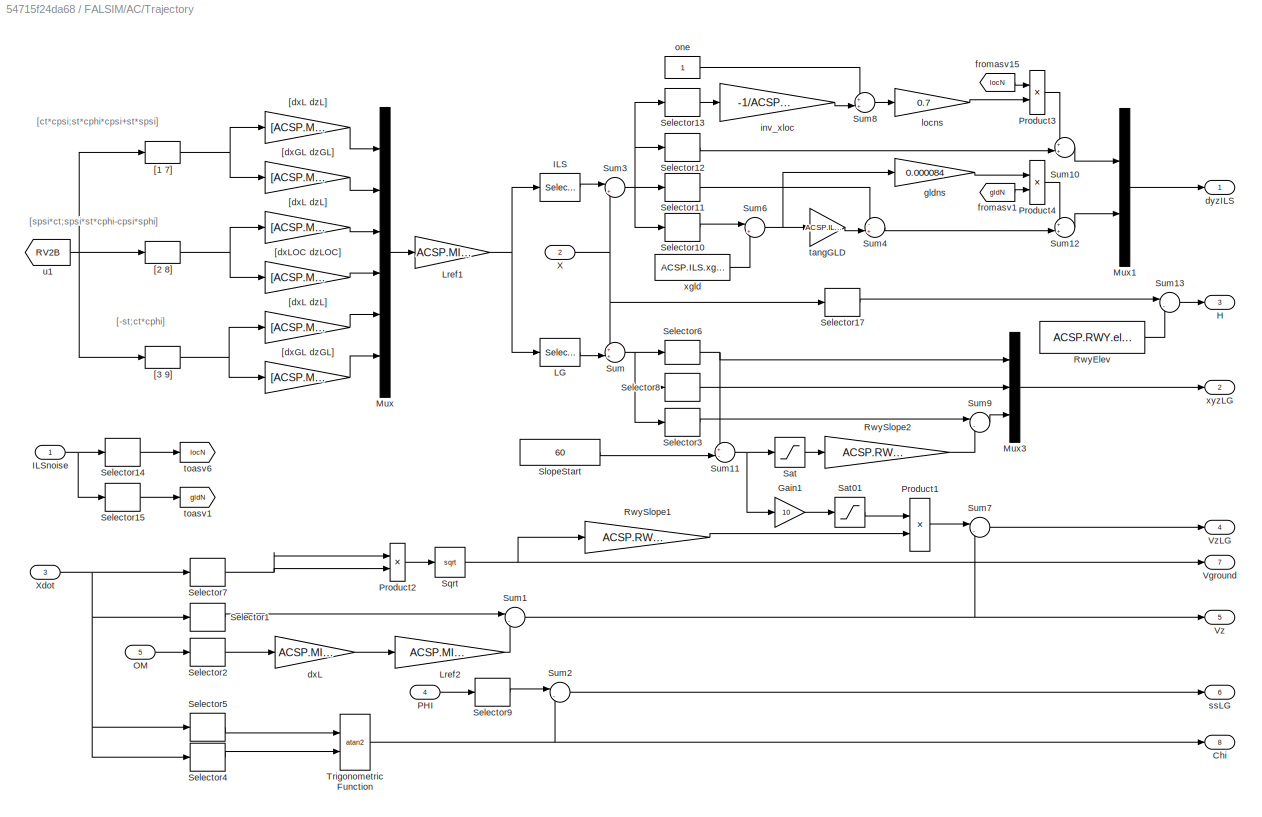
BLOCK [SubSystem] FALSIM/AC/Trajectory
  Ports = [5, 8]
  RequestExecContextInheritance = off
BLOCK [Outport] FALSIM/AC/Trajectory/Chi
  IconDisplay = Port number
  Port = 8
BLOCK [Gain] FALSIM/AC/Trajectory/Gain1
  Gain = 10
  OutDataTypeStr = Inherit: Inherit via internal rule
  ParamDataTypeStr = Inherit: Inherit via internal rule
  SaturateOnIntegerOverflow = off
BLOCK [Outport] FALSIM/AC/Trajectory/H
  IconDisplay = Port number
  Port = 3
BLOCK [Selector] FALSIM/AC/Trajectory/ILS
  IndexOptions = Index vector (dialog)
  Indices = [2 4 6]
  InputPortWidth = 6
  OutputSizes = 1
  Ports = [1, 1]
BLOCK [Inport] FALSIM/AC/Trajectory/ILSnoise
  IconDisplay = Port number
BLOCK [Selector] FALSIM/AC/Trajectory/LG
  IndexOptions = Index vector (dialog)
  Indices = [1 3 5]
  InputPortWidth = 6
  OutputSizes = 1
  Ports = [1, 1]
BLOCK [Gain] FALSIM/AC/Trajectory/Lref1
  Gain = ACSP.MIG.Lref
  OutDataTypeStr = Inherit: Inherit via internal rule
  ParamDataTypeStr = Inherit: Inherit via internal rule
  SaturateOnIntegerOverflow = off
BLOCK [Gain] FALSIM/AC/Trajectory/Lref2
  Gain = ACSP.MIG.Lref
  OutDataTypeStr = Inherit: Inherit via internal rule
  ParamDataTypeStr = Inherit: Inherit via internal rule
  SaturateOnIntegerOverflow = off
BLOCK [Mux] FALSIM/AC/Trajectory/Mux
  DisplayOption = bar
  Inputs = 6
  Ports = [6, 1]
BLOCK [Mux] FALSIM/AC/Trajectory/Mux1
  DisplayOption = bar
  Inputs = 2
  Ports = [2, 1]
BLOCK [Mux] FALSIM/AC/Trajectory/Mux3
  DisplayOption = bar
  Inputs = 3
  Ports = [3, 1]
BLOCK [Inport] FALSIM/AC/Trajectory/OM
  IconDisplay = Port number
  Port = 5
BLOCK [Inport] FALSIM/AC/Trajectory/PHI
  IconDisplay = Port number
  Port = 4
BLOCK [Product] FALSIM/AC/Trajectory/Product1
  Ports = [2, 1]
BLOCK [Product] FALSIM/AC/Trajectory/Product2
  Ports = [2, 1]
BLOCK [Product] FALSIM/AC/Trajectory/Product3
  Ports = [2, 1]
BLOCK [Product] FALSIM/AC/Trajectory/Product4
  Ports = [2, 1]
BLOCK [Constant] FALSIM/AC/Trajectory/RwyElev
  Value = ACSP.RWY.elevation
BLOCK [Gain] FALSIM/AC/Trajectory/RwySlope1
  Gain = ACSP.RWY.slope
  OutDataTypeStr = Inherit: Inherit via internal rule
  ParamDataTypeStr = Inherit: Inherit via internal rule
  SaturateOnIntegerOverflow = off
BLOCK [Gain] FALSIM/AC/Trajectory/RwySlope2
  Gain = ACSP.RWY.slope
  OutDataTypeStr = Inherit: Inherit via internal rule
  ParamDataTypeStr = Inherit: Inherit via internal rule
  SaturateOnIntegerOverflow = off
BLOCK [Saturate] FALSIM/AC/Trajectory/Sat
  InputPortMap = u0
  LowerLimit = 0
  Ports = [1, 1]
  UpperLimit = 1000
BLOCK [Saturate] FALSIM/AC/Trajectory/Sat01
  InputPortMap = u0
  LowerLimit = 0
  Ports = [1, 1]
  UpperLimit = 1
BLOCK [Selector] FALSIM/AC/Trajectory/Selector1
  IndexOptions = Index vector (dialog)
  Indices = 3
  InputPortWidth = 3
  OutputSizes = 1
  Ports = [1, 1]
BLOCK [Selector] FALSIM/AC/Trajectory/Selector10
  IndexOptions = Index vector (dialog)
  Indices = 1
  InputPortWidth = 3
  OutputSizes = 1
  Ports = [1, 1]
BLOCK [Selector] FALSIM/AC/Trajectory/Selector11
  IndexOptions = Index vector (dialog)
  Indices = 3
  InputPortWidth = 3
  OutputSizes = 1
  Ports = [1, 1]
BLOCK [Selector] FALSIM/AC/Trajectory/Selector12
  IndexOptions = Index vector (dialog)
  Indices = 2
  InputPortWidth = 3
  OutputSizes = 1
  Ports = [1, 1]
BLOCK [Selector] FALSIM/AC/Trajectory/Selector13
  IndexOptions = Index vector (dialog)
  Indices = 1
  InputPortWidth = 3
  OutputSizes = 1
  Ports = [1, 1]
BLOCK [Selector] FALSIM/AC/Trajectory/Selector14
  IndexOptions = Index vector (dialog)
  Indices = 1
  InputPortWidth = 2
  OutputSizes = 1
  Ports = [1, 1]
BLOCK [Selector] FALSIM/AC/Trajectory/Selector15
  IndexOptions = Index vector (dialog)
  Indices = 2
  InputPortWidth = 2
  OutputSizes = 1
  Ports = [1, 1]
BLOCK [Selector] FALSIM/AC/Trajectory/Selector17
  IndexOptions = Index vector (dialog)
  Indices = 3
  InputPortWidth = 3
  OutputSizes = 1
  Ports = [1, 1]
BLOCK [Selector] FALSIM/AC/Trajectory/Selector2
  IndexOptions = Index vector (dialog)
  Indices = 2
  InputPortWidth = 3
  OutputSizes = 1
  Ports = [1, 1]
BLOCK [Selector] FALSIM/AC/Trajectory/Selector3
  IndexOptions = Index vector (dialog)
  Indices = 3
  InputPortWidth = 3
  OutputSizes = 1
  Ports = [1, 1]
BLOCK [Selector] FALSIM/AC/Trajectory/Selector4
  IndexOptions = Index vector (dialog)
  Indices = 1
  InputPortWidth = 3
  OutputSizes = 1
  Ports = [1, 1]
BLOCK [Selector] FALSIM/AC/Trajectory/Selector5
  IndexOptions = Index vector (dialog)
  Indices = 2
  InputPortWidth = 3
  OutputSizes = 1
  Ports = [1, 1]
BLOCK [Selector] FALSIM/AC/Trajectory/Selector6
  IndexOptions = Index vector (dialog)
  Indices = 1
  InputPortWidth = 3
  OutputSizes = 1
  Ports = [1, 1]
BLOCK [Selector] FALSIM/AC/Trajectory/Selector7
  IndexOptions = Index vector (dialog)
  Indices = 1
  InputPortWidth = 3
  OutputSizes = 1
  Ports = [1, 1]
BLOCK [Selector] FALSIM/AC/Trajectory/Selector8
  IndexOptions = Index vector (dialog)
  Indices = 2
  InputPortWidth = 3
  OutputSizes = 1
  Ports = [1, 1]
BLOCK [Selector] FALSIM/AC/Trajectory/Selector9
  IndexOptions = Index vector (dialog)
  Indices = 3
  InputPortWidth = 3
  OutputSizes = 1
  Ports = [1, 1]
BLOCK [Constant] FALSIM/AC/Trajectory/SlopeStart
  Value = 60
BLOCK [Sqrt] FALSIM/AC/Trajectory/Sqrt
BLOCK [Sum] FALSIM/AC/Trajectory/Sum
  IconShape = round
  InputSameDT = off
  Inputs = ++|
  OutDataTypeStr = Inherit: Inherit via internal rule
  Ports = [2, 1]
  SaturateOnIntegerOverflow = off
BLOCK [Sum] FALSIM/AC/Trajectory/Sum1
  IconShape = round
  InputSameDT = off
  Inputs = |-+
  OutDataTypeStr = Inherit: Inherit via internal rule
  Ports = [2, 1]
  SaturateOnIntegerOverflow = off
BLOCK [Sum] FALSIM/AC/Trajectory/Sum10
  IconShape = round
  InputSameDT = off
  Inputs = ++|
  OutDataTypeStr = Inherit: Inherit via internal rule
  Ports = [2, 1]
  SaturateOnIntegerOverflow = off
BLOCK [Sum] FALSIM/AC/Trajectory/Sum11
  IconShape = round
  InputSameDT = off
  Inputs = +-|
  OutDataTypeStr = Inherit: Inherit via internal rule
  Ports = [2, 1]
  SaturateOnIntegerOverflow = off
BLOCK [Sum] FALSIM/AC/Trajectory/Sum12
  IconShape = round
  InputSameDT = off
  Inputs = ++|
  OutDataTypeStr = Inherit: Inherit via internal rule
  Ports = [2, 1]
  SaturateOnIntegerOverflow = off
BLOCK [Sum] FALSIM/AC/Trajectory/Sum13
  IconShape = round
  InputSameDT = off
  Inputs = |-+
  OutDataTypeStr = Inherit: Inherit via internal rule
  Ports = [2, 1]
  SaturateOnIntegerOverflow = off
BLOCK [Sum] FALSIM/AC/Trajectory/Sum2
  IconShape = round
  InputSameDT = off
  Inputs = |-+
  OutDataTypeStr = Inherit: Inherit via internal rule
  Ports = [2, 1]
  SaturateOnIntegerOverflow = off
BLOCK [Sum] FALSIM/AC/Trajectory/Sum3
  IconShape = round
  InputSameDT = off
  Inputs = |++
  OutDataTypeStr = Inherit: Inherit via internal rule
  Ports = [2, 1]
  SaturateOnIntegerOverflow = off
BLOCK [Sum] FALSIM/AC/Trajectory/Sum4
  IconShape = round
  InputSameDT = off
  Inputs = -+|
  OutDataTypeStr = Inherit: Inherit via internal rule
  Ports = [2, 1]
  SaturateOnIntegerOverflow = off
BLOCK [Sum] FALSIM/AC/Trajectory/Sum6
  IconShape = round
  InputSameDT = off
  Inputs = |+-
  OutDataTypeStr = Inherit: Inherit via internal rule
  Ports = [2, 1]
  SaturateOnIntegerOverflow = off
BLOCK [Sum] FALSIM/AC/Trajectory/Sum7
  IconShape = round
  InputSameDT = off
  Inputs = |-+
  OutDataTypeStr = Inherit: Inherit via internal rule
  Ports = [2, 1]
  SaturateOnIntegerOverflow = off
BLOCK [Sum] FALSIM/AC/Trajectory/Sum8
  IconShape = round
  InputSameDT = off
  Inputs = ++|
  OutDataTypeStr = Inherit: Inherit via internal rule
  Ports = [2, 1]
  SaturateOnIntegerOverflow = off
BLOCK [Sum] FALSIM/AC/Trajectory/Sum9
  IconShape = round
  InputSameDT = off
  Inputs = |--
  OutDataTypeStr = Inherit: Inherit via internal rule
  Ports = [2, 1]
  SaturateOnIntegerOverflow = off
BLOCK [Trigonometry] FALSIM/AC/Trajectory/Trigonometric Function
  Operator = atan2
  Ports = [2, 1]
BLOCK [Outport] FALSIM/AC/Trajectory/Vground
  IconDisplay = Port number
  Port = 7
BLOCK [Outport] FALSIM/AC/Trajectory/Vz
  IconDisplay = Port number
  Port = 5
BLOCK [Outport] FALSIM/AC/Trajectory/VzLG
  IconDisplay = Port number
  Port = 4
BLOCK [Inport] FALSIM/AC/Trajectory/X
  IconDisplay = Port number
  Port = 2
BLOCK [Inport] FALSIM/AC/Trajectory/Xdot
  IconDisplay = Port number
  Port = 3
BLOCK [Selector] FALSIM/AC/Trajectory/[1 7]
  IndexOptions = Index vector (dialog)
  Indices = [1 7]
  InputPortWidth = 9
  OutputSizes = 1
  Ports = [1, 1]
BLOCK [Selector] FALSIM/AC/Trajectory/[2 8]
  IndexOptions = Index vector (dialog)
  Indices = [2 8]
  InputPortWidth = 9
  OutputSizes = 1
  Ports = [1, 1]
BLOCK [Selector] FALSIM/AC/Trajectory/[3 9]
  IndexOptions = Index vector (dialog)
  Indices = [3 9]
  InputPortWidth = 9
  OutputSizes = 1
  Ports = [1, 1]
BLOCK [Gain] FALSIM/AC/Trajectory/[dxGL   dzGL]
  Gain = [ACSP.MIG.dxGL ACSP.MIG.dzGL]
  Multiplication = Matrix(K*u)
  OutDataTypeStr = Inherit: Inherit via internal rule
  ParamDataTypeStr = Inherit: Inherit via internal rule
  SaturateOnIntegerOverflow = off
BLOCK [Gain] FALSIM/AC/Trajectory/[dxGL  dzGL]
  Gain = [ACSP.MIG.dxGL ACSP.MIG.dzGL]
  Multiplication = Matrix(K*u)
  OutDataTypeStr = Inherit: Inherit via internal rule
  ParamDataTypeStr = Inherit: Inherit via internal rule
  SaturateOnIntegerOverflow = off
BLOCK [Gain] FALSIM/AC/Trajectory/[dxL   dzL]
  Gain = [ACSP.MIG.dxL ACSP.MIG.dzL]
  Multiplication = Matrix(K*u)
  OutDataTypeStr = Inherit: Inherit via internal rule
  ParamDataTypeStr = Inherit: Inherit via internal rule
  SaturateOnIntegerOverflow = off
BLOCK [Gain] FALSIM/AC/Trajectory/[dxL  dzL]
  Gain = [ACSP.MIG.dxL ACSP.MIG.dzL]
  Multiplication = Matrix(K*u)
  OutDataTypeStr = Inherit: Inherit via internal rule
  ParamDataTypeStr = Inherit: Inherit via internal rule
  SaturateOnIntegerOverflow = off
BLOCK [Gain] FALSIM/AC/Trajectory/[dxL dzL]
  Gain = [ACSP.MIG.dxL ACSP.MIG.dzL]
  Multiplication = Matrix(K*u)
  OutDataTypeStr = Inherit: Inherit via internal rule
  ParamDataTypeStr = Inherit: Inherit via internal rule
  SaturateOnIntegerOverflow = off
BLOCK [Gain] FALSIM/AC/Trajectory/[dxLOC  dzLOC]
  Gain = [ACSP.MIG.dxLO ACSP.MIG.dzLO]
  Multiplication = Matrix(K*u)
  OutDataTypeStr = Inherit: Inherit via internal rule
  ParamDataTypeStr = Inherit: Inherit via internal rule
  SaturateOnIntegerOverflow = off
BLOCK [Gain] FALSIM/AC/Trajectory/dxL
  Gain = ACSP.MIG.dxL
  Multiplication = Matrix(K*u)
  OutDataTypeStr = Inherit: Inherit via internal rule
  ParamDataTypeStr = Inherit: Inherit via internal rule
  SaturateOnIntegerOverflow = off
BLOCK [Outport] FALSIM/AC/Trajectory/dyzILS
  IconDisplay = Port number
BLOCK [From] FALSIM/AC/Trajectory/fromasv1
  GotoTag = gldN
BLOCK [From] FALSIM/AC/Trajectory/fromasv15
  GotoTag = locN
BLOCK [Gain] FALSIM/AC/Trajectory/gldns
  Gain = 0.000084
  OutDataTypeStr = Inherit: Inherit via internal rule
  ParamDataTypeStr = Inherit: Inherit via internal rule
  SaturateOnIntegerOverflow = off
BLOCK [Gain] FALSIM/AC/Trajectory/inv_xloc
  Gain = -1/ACSP.ILS.xloc
  OutDataTypeStr = Inherit: Inherit via internal rule
  ParamDataTypeStr = Inherit: Inherit via internal rule
  SaturateOnIntegerOverflow = off
BLOCK [Gain] FALSIM/AC/Trajectory/locns
  Gain = 0.7
  OutDataTypeStr = Inherit: Inherit via internal rule
  ParamDataTypeStr = Inherit: Inherit via internal rule
  SaturateOnIntegerOverflow = off
BLOCK [Constant] FALSIM/AC/Trajectory/one
BLOCK [Outport] FALSIM/AC/Trajectory/ssLG
  IconDisplay = Port number
  Port = 6
BLOCK [Gain] FALSIM/AC/Trajectory/tangGLD
  Gain = ACSP.ILS.tanggld
  OutDataTypeStr = Inherit: Inherit via internal rule
  ParamDataTypeStr = Inherit: Inherit via internal rule
  SaturateOnIntegerOverflow = off
BLOCK [Goto] FALSIM/AC/Trajectory/toasv1
  GotoTag = gldN
BLOCK [Goto] FALSIM/AC/Trajectory/toasv6
  GotoTag = locN
BLOCK [From] FALSIM/AC/Trajectory/u1
  GotoTag = RV2B
  TagVisibility = global
BLOCK [Constant] FALSIM/AC/Trajectory/xgld
  Value = ACSP.ILS.xgld
BLOCK [Outport] FALSIM/AC/Trajectory/xyzLG
  IconDisplay = Port number
  Port = 2
BLOCK [Inport] FALSIM/AC/U
  IconDisplay = Port number
BLOCK [Outport] FALSIM/AC/V
  IconDisplay = Port number
  Port = 2
BLOCK [Outport] FALSIM/AC/Va
  IconDisplay = Port number
  Port = 8
BLOCK [Outport] FALSIM/AC/Vc
  IconDisplay = Port number
  Port = 7
BLOCK [Outport] FALSIM/AC/Vground
  IconDisplay = Port number
  Port = 9
BLOCK [Outport] FALSIM/AC/Vz
  IconDisplay = Port number
  Port = 10
BLOCK [Outport] FALSIM/AC/VzLG
  IconDisplay = Port number
  Port = 12
BLOCK [Inport] FALSIM/AC/Wind
  IconDisplay = Port number
  Port = 2
  PortDimensions = 3
BLOCK [SubSystem] FALSIM/AC/Wind and ATM
  Ports = [2, 4]
  RequestExecContextInheritance = off
BLOCK [Mux] FALSIM/AC/Wind and ATM/Mux
  DisplayOption = bar
  Inputs = 2
  Ports = [2, 1]
BLOCK [Product] FALSIM/AC/Wind and ATM/Product1
  Inputs = */
  Ports = [2, 1]
BLOCK [Product] FALSIM/AC/Wind and ATM/Product2
  Ports = [2, 1]
BLOCK [Selector] FALSIM/AC/Wind and ATM/Selector1
  IndexOptions = Index vector (dialog)
  Indices = 2
  InputPortWidth = 3
  OutputSizes = 1
  Ports = [1, 1]
BLOCK [Selector] FALSIM/AC/Wind and ATM/Selector2
  IndexOptions = Index vector (dialog)
  Indices = 3
  InputPortWidth = 3
  OutputSizes = 1
  Ports = [1, 1]
BLOCK [Selector] FALSIM/AC/Wind and ATM/Selector3
  IndexOptions = Index vector (dialog)
  Indices = 1
  InputPortWidth = 3
  OutputSizes = 1
  Ports = [1, 1]
BLOCK [Sqrt] FALSIM/AC/Wind and ATM/Sqrt
BLOCK [Sum] FALSIM/AC/Wind and ATM/Sum of Elements
  InputSameDT = off
  Inputs = +
  OutDataTypeStr = Inherit: Inherit via internal rule
  Ports = [1, 1]
  SaturateOnIntegerOverflow = off
BLOCK [Sum] FALSIM/AC/Wind and ATM/Sum1
  IconShape = round
  InputSameDT = off
  Inputs = +-|
  OutDataTypeStr = Inherit: Inherit via internal rule
  Ports = [2, 1]
  SaturateOnIntegerOverflow = off
BLOCK [Trigonometry] FALSIM/AC/Wind and ATM/Trigonometric Function
  Operator = atan2
  Ports = [2, 1]
BLOCK [Trigonometry] FALSIM/AC/Wind and ATM/Trigonometric Function1
  Operator = asin
  Ports = [1, 1]
BLOCK [Inport] FALSIM/AC/Wind and ATM/V
  IconDisplay = Port number
BLOCK [SubSystem] FALSIM/AC/Wind and ATM/V2B
  Ports = [2, 1]
  RequestExecContextInheritance = off
BLOCK [Mux] FALSIM/AC/Wind and ATM/V2B/Mux
  DisplayOption = bar
  Inputs = 2
  Ports = [2, 1]
BLOCK [Mux] FALSIM/AC/Wind and ATM/V2B/Mux1
  DisplayOption = bar
  Inputs = 3
  Ports = [3, 1]
BLOCK [Fcn] FALSIM/AC/Wind and ATM/V2B/Y1
  Expr = u(1)*u(10)+u(2)*u(11)+u(3)*u(12)
BLOCK [Fcn] FALSIM/AC/Wind and ATM/V2B/Y2
  Expr = u(4)*u(10)+u(5)*u(11)+u(6)*u(12)
BLOCK [Fcn] FALSIM/AC/Wind and ATM/V2B/Y3
  Expr = u(7)*u(10)+u(8)*u(11)+u(9)*u(12)
BLOCK [Inport] FALSIM/AC/Wind and ATM/V2B/x
  IconDisplay = Port number
BLOCK [Inport] FALSIM/AC/Wind and ATM/V2B/y
  IconDisplay = Port number
  Port = 2
BLOCK [Outport] FALSIM/AC/Wind and ATM/V2B/z
  IconDisplay = Port number
BLOCK [Outport] FALSIM/AC/Wind and ATM/Va
  IconDisplay = Port number
  Port = 3
BLOCK [Gain] FALSIM/AC/Wind and ATM/Va2Vc
  Gain = ACSP.ATM.va2vc
  OutDataTypeStr = Inherit: Inherit via internal rule
  ParamDataTypeStr = Inherit: Inherit via internal rule
  SaturateOnIntegerOverflow = off
BLOCK [Outport] FALSIM/AC/Wind and ATM/Vc
  IconDisplay = Port number
  Port = 2
BLOCK [Inport] FALSIM/AC/Wind and ATM/Wind
  IconDisplay = Port number
  Port = 2
BLOCK [Outport] FALSIM/AC/Wind and ATM/ab
  IconDisplay = Port number
BLOCK [Gain] FALSIM/AC/Wind and ATM/half
  Gain = 0.5
BLOCK [Outport] FALSIM/AC/Wind and ATM/qd
  IconDisplay = Port number
  Port = 4
BLOCK [Gain] FALSIM/AC/Wind and ATM/rho
  Gain = ACSP.ATM.rho
  OutDataTypeStr = Inherit: Inherit via internal rule
  ParamDataTypeStr = Inherit: Inherit via internal rule
  SaturateOnIntegerOverflow = off
BLOCK [From] FALSIM/AC/Wind and ATM/u8
  GotoTag = RV2B
  TagVisibility = global
BLOCK [Outport] FALSIM/AC/X
  IconDisplay = Port number
  Port = 4
BLOCK [Outport] FALSIM/AC/ab
  IconDisplay = Port number
  Port = 6
BLOCK [Outport] FALSIM/AC/dyzILS
  IconDisplay = Port number
  Port = 16
BLOCK [Outport] FALSIM/AC/ssLG
  IconDisplay = Port number
  Port = 14
BLOCK [Outport] FALSIM/AC/xyzLG
  IconDisplay = Port number
  Port = 13
BLOCK [BusCreator] FALSIM/Bus Creator
  DisplayOption = bar
  InheritFromInputs = on
  Inputs = 12
  Ports = [12, 1]
BLOCK [BusCreator] FALSIM/Bus Creator1
  DisplayOption = bar
  InheritFromInputs = on
  Inputs = 5
  Ports = [5, 1]
BLOCK [BusCreator] FALSIM/Bus Creator2
  DisplayOption = bar
  InheritFromInputs = on
  Inputs = 3
  Ports = [3, 1]
BLOCK [BusCreator] FALSIM/Bus Creator3
  DisplayOption = bar
  InheritFromInputs = on
  Inputs = 3
  Ports = [3, 1]
BLOCK [BusCreator] FALSIM/Bus Creator4
  DisplayOption = bar
  InheritFromInputs = on
  Inputs = 3
  Ports = [3, 1]
BLOCK [BusCreator] FALSIM/Bus Creator5
  DisplayOption = bar
  InheritFromInputs = on
  Inputs = 2
  Ports = [2, 1]
BLOCK [BusCreator] FALSIM/Bus Creator6
  DisplayOption = bar
  InheritFromInputs = on
  Inputs = 4
  Ports = [4, 1]
BLOCK [BusCreator] FALSIM/Bus Creator7
  DisplayOption = bar
  InheritFromInputs = on
  Inputs = 5
  Ports = [5, 1]
BLOCK [Demux] FALSIM/Demux1
  DisplayOption = bar
  Outputs = 3
  Ports = [1, 3]
BLOCK [Demux] FALSIM/Demux2
  DisplayOption = bar
  Outputs = 3
  Ports = [1, 3]
BLOCK [Demux] FALSIM/Demux3
  DisplayOption = bar
  Outputs = 3
  Ports = [1, 3]
BLOCK [Demux] FALSIM/Demux4
  DisplayOption = bar
  Outputs = 2
  Ports = [1, 2]
BLOCK [Demux] FALSIM/Demux5
  DisplayOption = bar
  Ports = [1, 4]
BLOCK [SubSystem] FALSIM/Engines and Actuators
  Ports = [2, 2]
  RequestExecContextInheritance = off
BLOCK [SubSystem] FALSIM/Engines and Actuators/Actuators
  Ports = [1, 1]
  RequestExecContextInheritance = off
BLOCK [Gain] FALSIM/Engines and Actuators/Actuators/Gain2
  Gain = 1./ACSP.ACT.tau
  OutDataTypeStr = Inherit: Inherit via internal rule
  ParamDataTypeStr = Inherit: Inherit via internal rule
  SaturateOnIntegerOverflow = off
BLOCK [Integrator] FALSIM/Engines and Actuators/Actuators/Int_ASD
  ContinuousStateAttributes = 'xASD'
  Ports = [1, 1]
BLOCK [Saturate] FALSIM/Engines and Actuators/Actuators/ML [55 25 30]
  InputPortMap = u0
  LowerLimit = -ACSP.ACT.ML
  Ports = [1, 1]
  UpperLimit = ACSP.ACT.ML
BLOCK [Saturate] FALSIM/Engines and Actuators/Actuators/RL [60 20 30]
  InputPortMap = u0
  LowerLimit = -ACSP.ACT.RL
  Ports = [1, 1]
  UpperLimit = ACSP.ACT.RL
BLOCK [Sum] FALSIM/Engines and Actuators/Actuators/Sum
  IconShape = round
  InputSameDT = off
  Inputs = |+-
  OutDataTypeStr = Inherit: Inherit via internal rule
  Ports = [2, 1]
  SaturateOnIntegerOverflow = off
BLOCK [Outport] FALSIM/Engines and Actuators/Actuators/delta
  IconDisplay = Port number
BLOCK [Inport] FALSIM/Engines and Actuators/Actuators/deltac
  IconDisplay = Port number
BLOCK [SubSystem] FALSIM/Engines and Actuators/Engines
  Ports = [2, 2]
  RequestExecContextInheritance = off
BLOCK [Saturate] FALSIM/Engines and Actuators/Engines/EML
  InputPortMap = u0
  LowerLimit = ACSP.ENG.LML
  Ports = [1, 1]
  UpperLimit = ACSP.ENG.UML
BLOCK [Saturate] FALSIM/Engines and Actuators/Engines/ERL
  InputPortMap = u0
  LowerLimit = -ACSP.ENG.RL
  Ports = [1, 1]
  UpperLimit = ACSP.ENG.RL
BLOCK [Gain] FALSIM/Engines and Actuators/Engines/Gain1
  Gain = 1/ACSP.ENG.tau
  OutDataTypeStr = Inherit: Inherit via internal rule
  ParamDataTypeStr = Inherit: Inherit via internal rule
  SaturateOnIntegerOverflow = off
BLOCK [Gain] FALSIM/Engines and Actuators/Engines/Gain2
  Gain = ACSP.ENG.Ga
  OutDataTypeStr = Inherit: Inherit via internal rule
  ParamDataTypeStr = Inherit: Inherit via internal rule
  SaturateOnIntegerOverflow = off
BLOCK [Constant] FALSIM/Engines and Actuators/Engines/Gb
  Value = ACSP.ENG.Gb
BLOCK [Integrator] FALSIM/Engines and Actuators/Engines/Int_ENG
  ContinuousStateAttributes = 'xENG'
  Ports = [1, 1]
BLOCK [Sum] FALSIM/Engines and Actuators/Engines/Sum
  IconShape = round
  InputSameDT = off
  Inputs = |+-
  OutDataTypeStr = Inherit: Inherit via internal rule
  Ports = [2, 1]
  SaturateOnIntegerOverflow = off
BLOCK [Sum] FALSIM/Engines and Actuators/Engines/Sum1
  IconShape = round
  InputSameDT = off
  Inputs = +-|
  OutDataTypeStr = Inherit: Inherit via internal rule
  Ports = [2, 1]
  SaturateOnIntegerOverflow = off
BLOCK [Sum] FALSIM/Engines and Actuators/Engines/Sum2
  IconShape = round
  InputSameDT = off
  Inputs = |++
  OutDataTypeStr = Inherit: Inherit via internal rule
  Ports = [2, 1]
  SaturateOnIntegerOverflow = off
BLOCK [Sum] FALSIM/Engines and Actuators/Engines/Sum3
  IconShape = round
  InputSameDT = off
  Inputs = ++|
  OutDataTypeStr = Inherit: Inherit via internal rule
  Ports = [2, 1]
  SaturateOnIntegerOverflow = off
BLOCK [Outport] FALSIM/Engines and Actuators/Engines/TH
  IconDisplay = Port number
BLOCK [Outport] FALSIM/Engines and Actuators/Engines/epr
  IconDisplay = Port number
  Port = 2
BLOCK [Inport] FALSIM/Engines and Actuators/Engines/epr0
  IconDisplay = Port number
BLOCK [Inport] FALSIM/Engines and Actuators/Engines/eprc
  IconDisplay = Port number
  Port = 2
BLOCK [Mux] FALSIM/Engines and Actuators/Mux
  DisplayOption = bar
  Inputs = 2
  Ports = [2, 1]
BLOCK [Mux] FALSIM/Engines and Actuators/Mux1
  DisplayOption = bar
  Inputs = 2
  Ports = [2, 1]
BLOCK [Sum] FALSIM/Engines and Actuators/Sum3
  IconShape = round
  InputSameDT = off
  Inputs = |++
  OutDataTypeStr = Inherit: Inherit via internal rule
  Ports = [2, 1]
  SaturateOnIntegerOverflow = off
BLOCK [Outport] FALSIM/Engines and Actuators/U
  IconDisplay = Port number
  Port = 2
BLOCK [Inport] FALSIM/Engines and Actuators/deflections
  IconDisplay = Port number
  Port = 2
BLOCK [Constant] FALSIM/Engines and Actuators/delta0
  Value = ACSP.U0.delta
BLOCK [Constant] FALSIM/Engines and Actuators/epr0
  Value = ACSP.U0.epr
BLOCK [Inport] FALSIM/Engines and Actuators/eprc
  IconDisplay = Port number
BLOCK [Outport] FALSIM/Engines and Actuators/states
  IconDisplay = Port number
BLOCK [Constant] FALSIM/Gb
  Value = ACSP.U0.wind
BLOCK [Inport] FALSIM/ILSnoise
  IconDisplay = Port number
  Port = 4
  PortDimensions = 2
BLOCK [Selector] FALSIM/Selector1
  IndexOptions = Index vector (dialog)
  Indices = 2
  InputPortWidth = 3
  OutputSizes = 1
  Ports = [1, 1]
BLOCK [Selector] FALSIM/Selector10
  IndexOptions = Index vector (dialog)
  Indices = 3
  InputPortWidth = 3
  OutputSizes = 1
  Ports = [1, 1]
BLOCK [Selector] FALSIM/Selector2
  IndexOptions = Index vector (dialog)
  Indices = 1
  InputPortWidth = 3
  OutputSizes = 1
  Ports = [1, 1]
BLOCK [Selector] FALSIM/Selector3
  IndexOptions = Index vector (dialog)
  Indices = 1
  InputPortWidth = 2
  OutputSizes = 1
  Ports = [1, 1]
BLOCK [Selector] FALSIM/Selector4
  IndexOptions = Index vector (dialog)
  Indices = 2
  InputPortWidth = 2
  OutputSizes = 1
  Ports = [1, 1]
BLOCK [Sum] FALSIM/Sum3
  IconShape = round
  InputSameDT = off
  Inputs = ++|
  OutDataTypeStr = Inherit: Inherit via internal rule
  Ports = [2, 1]
  SaturateOnIntegerOverflow = off
BLOCK [Inport] FALSIM/delta [2-4]
  IconDisplay = Port number
  Port = 2
  PortDimensions = 3
BLOCK [Inport] FALSIM/eprc [1]
  IconDisplay = Port number
BLOCK [From] FALSIM/fromasv14
  GotoTag = PHI
BLOCK [From] FALSIM/fromasv15
  GotoTag = OM
BLOCK [From] FALSIM/fromasv16
  GotoTag = Nxyz
BLOCK [From] FALSIM/fromasv18
  GotoTag = DLG
BLOCK [From] FALSIM/fromasv19
  GotoTag = yLG
BLOCK [From] FALSIM/fromasv2
  GotoTag = X
BLOCK [From] FALSIM/fromasv20
  GotoTag = ssLG
BLOCK [From] FALSIM/fromasv21
  GotoTag = xEA
BLOCK [From] FALSIM/fromasv25
  GotoTag = ab
BLOCK [From] FALSIM/fromasv3
  GotoTag = PHI
BLOCK [From] FALSIM/fromasv4
  GotoTag = OM
BLOCK [From] FALSIM/fromasv5
  GotoTag = V
BLOCK [From] FALSIM/fromasv8
  GotoTag = ab
BLOCK [From] FALSIM/fromasv9
  GotoTag = VzLG
BLOCK [Goto] FALSIM/toasv1
  GotoTag = X
BLOCK [Goto] FALSIM/toasv10
  GotoTag = VzLG
BLOCK [Goto] FALSIM/toasv13
  GotoTag = xEA
BLOCK [Goto] FALSIM/toasv14
  GotoTag = yLG
BLOCK [Goto] FALSIM/toasv15
  GotoTag = ssLG
BLOCK [Goto] FALSIM/toasv19
  GotoTag = DLG
BLOCK [Goto] FALSIM/toasv2
  GotoTag = V
BLOCK [Goto] FALSIM/toasv3
  GotoTag = OM
BLOCK [Goto] FALSIM/toasv4
  GotoTag = PHI
BLOCK [Goto] FALSIM/toasv5
  GotoTag = Nxyz
BLOCK [Goto] FALSIM/toasv6
  GotoTag = ab
BLOCK [Inport] FALSIM/wind [5-7]
  IconDisplay = Port number
  Port = 3
  PortDimensions = 3
BLOCK [Outport] FALSIM/x
  IconDisplay = Port number
BLOCK [Outport] FALSIM/ym
  IconDisplay = Port number
  Port = 3
BLOCK [Outport] FALSIM/ys
  IconDisplay = Port number
  Port = 2
BLOCK [Inport] ILSnoise [8-9]
  IconDisplay = Port number
  Port = 4
  PortDimensions = 2
BLOCK [Inport] Wind [5-7]
  IconDisplay = Port number
  Port = 3
  PortDimensions = 3
BLOCK [Outport] X (size=16)
  IconDisplay = Port number
BLOCK [Outport] YM (size=19)
  IconDisplay = Port number
  Port = 2
BLOCK [Outport] YS (size=5)
  IconDisplay = Port number
  Port = 3
BLOCK [Inport] delta [2-4]
  IconDisplay = Port number
  Port = 2
  PortDimensions = 3
BLOCK [Inport] eprc [1]
  IconDisplay = Port number
ANNOTATION (root): 20 21 22 23 24 VzLG DLG YLG ssLG beta
ANNOTATION (root): V(3) OM(3) X(3) PHI(3) ACT(4)
ANNOTATION (root): YM 01. Nx 02. Ny 03. Nz 04. p 05. q 06. r 07. phi 08. theta 09. psi 10. alpha 11. Vc 12. Va 13. Vg 14. Vz 15. H 16. HLG 17. Chi 18. dY 19. dZ
ANNOTATION FALSIM: Developed by Jean-Marc Biannic, ONERA for the SMAC project
ANNOTATION FALSIM: http://w3.onera.fr/smac
ANNOTATION FALSIM/AC/Dynamics: F =mass*(Vdot + OM x V)
ANNOTATION FALSIM/AC/Dynamics: M = I*OMdot + OM x (I*OM)
ANNOTATION FALSIM/AC/F and M/Forces: Faero
ANNOTATION FALSIM/AC/F and M/Forces: Fengine
ANNOTATION FALSIM/AC/F and M/Forces: Fg
ANNOTATION FALSIM/AC/F and M/Moments: MFaero
ANNOTATION FALSIM/AC/F and M/Moments: Ma
ANNOTATION FALSIM/AC/F and M/Moments: Mengine
ANNOTATION FALSIM/AC/Trajectory: [-st;ct*cphi]
ANNOTATION FALSIM/AC/Trajectory: [ct*cpsi;st*cphi*cpsi+st*spsi]
ANNOTATION FALSIM/AC/Trajectory: [spsi*ct;spsi*st*cphi-cpsi*sphi]
LINE FALSIM/AC/Dynamics/CP1/Mux1:1 -> FALSIM/AC/Dynamics/CP1/z:1
NET FALSIM/AC/Dynamics/CP1/Mux:1 -> FALSIM/AC/Dynamics/CP1/Y1:1, FALSIM/AC/Dynamics/CP1/Y2:1, FALSIM/AC/Dynamics/CP1/Y3:1
LINE FALSIM/AC/Dynamics/CP1/Y1:1 -> FALSIM/AC/Dynamics/CP1/Mux1:1
LINE FALSIM/AC/Dynamics/CP1/Y2:1 -> FALSIM/AC/Dynamics/CP1/Mux1:2
LINE FALSIM/AC/Dynamics/CP1/Y3:1 -> FALSIM/AC/Dynamics/CP1/Mux1:3
LINE FALSIM/AC/Dynamics/CP1/x:1 -> FALSIM/AC/Dynamics/CP1/Mux:1
LINE FALSIM/AC/Dynamics/CP1/y:1 -> FALSIM/AC/Dynamics/CP1/Mux:2
LINE FALSIM/AC/Dynamics/CP1:1 -> FALSIM/AC/Dynamics/Sum:2
LINE FALSIM/AC/Dynamics/CP2/Mux1:1 -> FALSIM/AC/Dynamics/CP2/z:1
NET FALSIM/AC/Dynamics/CP2/Mux:1 -> FALSIM/AC/Dynamics/CP2/Y1:1, FALSIM/AC/Dynamics/CP2/Y2:1, FALSIM/AC/Dynamics/CP2/Y3:1
LINE FALSIM/AC/Dynamics/CP2/Y1:1 -> FALSIM/AC/Dynamics/CP2/Mux1:1
LINE FALSIM/AC/Dynamics/CP2/Y2:1 -> FALSIM/AC/Dynamics/CP2/Mux1:2
LINE FALSIM/AC/Dynamics/CP2/Y3:1 -> FALSIM/AC/Dynamics/CP2/Mux1:3
LINE FALSIM/AC/Dynamics/CP2/x:1 -> FALSIM/AC/Dynamics/CP2/Mux:1
LINE FALSIM/AC/Dynamics/CP2/y:1 -> FALSIM/AC/Dynamics/CP2/Mux:2
LINE FALSIM/AC/Dynamics/CP2:1 -> FALSIM/AC/Dynamics/Sum1:1
LINE FALSIM/AC/Dynamics/F:1 -> FALSIM/AC/Dynamics/Mass^-1:1
LINE FALSIM/AC/Dynamics/Inertia:1 -> FALSIM/AC/Dynamics/CP1:2
LINE FALSIM/AC/Dynamics/Inertia^-1:1 -> FALSIM/AC/Dynamics/Int_OM:1
NET FALSIM/AC/Dynamics/Int_OM:1 -> FALSIM/AC/Dynamics/CP1:1, FALSIM/AC/Dynamics/CP2:1, FALSIM/AC/Dynamics/Inertia:1, FALSIM/AC/Dynamics/OM:1
NET FALSIM/AC/Dynamics/Int_V:1 -> FALSIM/AC/Dynamics/CP2:2, FALSIM/AC/Dynamics/V:1
LINE FALSIM/AC/Dynamics/M:1 -> FALSIM/AC/Dynamics/Sum:1
LINE FALSIM/AC/Dynamics/Mass^-1:1 -> FALSIM/AC/Dynamics/Sum1:2
LINE FALSIM/AC/Dynamics/Sum1:1 -> FALSIM/AC/Dynamics/Int_V:1
LINE FALSIM/AC/Dynamics/Sum:1 -> FALSIM/AC/Dynamics/Inertia^-1:1
NET FALSIM/AC/Dynamics:1 -> FALSIM/AC/Kinematics:1, FALSIM/AC/V:1, FALSIM/AC/Wind and ATM:1
NET FALSIM/AC/Dynamics:2 -> FALSIM/AC/F and M:6, FALSIM/AC/Kinematics:2, FALSIM/AC/OM:1, FALSIM/AC/Trajectory:5
NET FALSIM/AC/F and M/Bus Creator:1 -> FALSIM/AC/F and M/Forces:1, FALSIM/AC/F and M/Moments:1
LINE FALSIM/AC/F and M/Demux1:1 -> FALSIM/AC/F and M/Bus Creator:3
LINE FALSIM/AC/F and M/Demux1:2 -> FALSIM/AC/F and M/Bus Creator:4
LINE FALSIM/AC/F and M/Demux1:3 -> FALSIM/AC/F and M/Bus Creator:5
LINE FALSIM/AC/F and M/Demux2:1 -> FALSIM/AC/F and M/Bus Creator:8
LINE FALSIM/AC/F and M/Demux2:2 -> FALSIM/AC/F and M/Bus Creator:9
LINE FALSIM/AC/F and M/Demux2:3 -> FALSIM/AC/F and M/Bus Creator:10
LINE FALSIM/AC/F and M/Demux3:1 -> FALSIM/AC/F and M/Bus Creator:1
LINE FALSIM/AC/F and M/Demux3:2 -> FALSIM/AC/F and M/Bus Creator:2
LINE FALSIM/AC/F and M/Forces/Body2Aero/Fb:1 -> FALSIM/AC/F and M/Forces/Body2Aero/Mux:3
LINE FALSIM/AC/F and M/Forces/Body2Aero/Fy:1 -> FALSIM/AC/F and M/Forces/Body2Aero/Mux3:2
LINE FALSIM/AC/F and M/Forces/Body2Aero/Mux3:1 -> FALSIM/AC/F and M/Forces/Body2Aero/Fa:1
NET FALSIM/AC/F and M/Forces/Body2Aero/Mux:1 -> FALSIM/AC/F and M/Forces/Body2Aero/Fy:1, FALSIM/AC/F and M/Forces/Body2Aero/ca*Fx-sa*Fz:1, FALSIM/AC/F and M/Forces/Body2Aero/sa*Fx+ca*Fz:1
LINE FALSIM/AC/F and M/Forces/Body2Aero/Trigonometric Function1:1 -> FALSIM/AC/F and M/Forces/Body2Aero/Mux:2
LINE FALSIM/AC/F and M/Forces/Body2Aero/Trigonometric Function2:1 -> FALSIM/AC/F and M/Forces/Body2Aero/Mux:1
NET FALSIM/AC/F and M/Forces/Body2Aero/alpha:1 -> FALSIM/AC/F and M/Forces/Body2Aero/Trigonometric Function1:1, FALSIM/AC/F and M/Forces/Body2Aero/Trigonometric Function2:1
LINE FALSIM/AC/F and M/Forces/Body2Aero/ca*Fx-sa*Fz:1 -> FALSIM/AC/F and M/Forces/Body2Aero/Mux3:1
LINE FALSIM/AC/F and M/Forces/Body2Aero/sa*Fx+ca*Fz:1 -> FALSIM/AC/F and M/Forces/Body2Aero/Mux3:3
NET FALSIM/AC/F and M/Forces/Body2Aero:1 -> FALSIM/AC/F and M/Forces/Fa:1, FALSIM/AC/F and M/Forces/Sum2:2
LINE FALSIM/AC/F and M/Forces/Bus Selector:1 -> FALSIM/AC/F and M/Forces/Body2Aero:1
LINE FALSIM/AC/F and M/Forces/CXYZ/Abs:1 -> FALSIM/AC/F and M/Forces/CXYZ/Gain2:1
LINE FALSIM/AC/F and M/Forces/CXYZ/Bus Selector1:1 -> FALSIM/AC/F and M/Forces/CXYZ/CY_beta:1
LINE FALSIM/AC/F and M/Forces/CXYZ/Bus Selector1:2 -> FALSIM/AC/F and M/Forces/CXYZ/CY_dr:1
LINE FALSIM/AC/F and M/Forces/CXYZ/Bus Selector2:1 -> FALSIM/AC/F and M/Forces/CXYZ/CLa:1
LINE FALSIM/AC/F and M/Forces/CXYZ/Bus Selector2:2 -> FALSIM/AC/F and M/Forces/CXYZ/Product1:1
LINE FALSIM/AC/F and M/Forces/CXYZ/Bus Selector2:3 -> FALSIM/AC/F and M/Forces/CXYZ/Product1:2
LINE FALSIM/AC/F and M/Forces/CXYZ/Bus Selector2:4 -> FALSIM/AC/F and M/Forces/CXYZ/CLa3:1
LINE FALSIM/AC/F and M/Forces/CXYZ/Bus Selector3:1 -> FALSIM/AC/F and M/Forces/CXYZ/CLa1:1
NET FALSIM/AC/F and M/Forces/CXYZ/Bus Selector:1 -> FALSIM/AC/F and M/Forces/CXYZ/CD_alpha:1, FALSIM/AC/F and M/Forces/CXYZ/Product:1, FALSIM/AC/F and M/Forces/CXYZ/Product:2
LINE FALSIM/AC/F and M/Forces/CXYZ/CD0:1 -> FALSIM/AC/F and M/Forces/CXYZ/Sum2:1
LINE FALSIM/AC/F and M/Forces/CXYZ/CD_alpha2:1 -> FALSIM/AC/F and M/Forces/CXYZ/Sum2:3
LINE FALSIM/AC/F and M/Forces/CXYZ/CD_alpha:1 -> FALSIM/AC/F and M/Forces/CXYZ/Sum2:2
LINE FALSIM/AC/F and M/Forces/CXYZ/CL0:1 -> FALSIM/AC/F and M/Forces/CXYZ/Sum3:1
LINE FALSIM/AC/F and M/Forces/CXYZ/CLa1:1 -> FALSIM/AC/F and M/Forces/CXYZ/Abs:1
LINE FALSIM/AC/F and M/Forces/CXYZ/CLa2:1 -> FALSIM/AC/F and M/Forces/CXYZ/Sum4:2
LINE FALSIM/AC/F and M/Forces/CXYZ/CLa3:1 -> FALSIM/AC/F and M/Forces/CXYZ/Sum3:4
LINE FALSIM/AC/F and M/Forces/CXYZ/CLa4:1 -> FALSIM/AC/F and M/Forces/CXYZ/Sum3:3
LINE FALSIM/AC/F and M/Forces/CXYZ/CLa5:1 -> FALSIM/AC/F and M/Forces/CXYZ/CLa4:1
LINE FALSIM/AC/F and M/Forces/CXYZ/CLa:1 -> FALSIM/AC/F and M/Forces/CXYZ/Sum3:2
LINE FALSIM/AC/F and M/Forces/CXYZ/CY_beta:1 -> FALSIM/AC/F and M/Forces/CXYZ/Sum1:1
LINE FALSIM/AC/F and M/Forces/CXYZ/CY_dr:1 -> FALSIM/AC/F and M/Forces/CXYZ/Sum1:2
LINE FALSIM/AC/F and M/Forces/CXYZ/Gain1:1 -> FALSIM/AC/F and M/Forces/CXYZ/Mux:3
LINE FALSIM/AC/F and M/Forces/CXYZ/Gain2:1 -> FALSIM/AC/F and M/Forces/CXYZ/Math Function:1
LINE FALSIM/AC/F and M/Forces/CXYZ/Gain:1 -> FALSIM/AC/F and M/Forces/CXYZ/Mux:1
LINE FALSIM/AC/F and M/Forces/CXYZ/Math Function:1 -> FALSIM/AC/F and M/Forces/CXYZ/CLa2:1
LINE FALSIM/AC/F and M/Forces/CXYZ/Mux:1 -> FALSIM/AC/F and M/Forces/CXYZ/CXYZ:1
LINE FALSIM/AC/F and M/Forces/CXYZ/Product1:1 -> FALSIM/AC/F and M/Forces/CXYZ/CLa5:1
LINE FALSIM/AC/F and M/Forces/CXYZ/Product:1 -> FALSIM/AC/F and M/Forces/CXYZ/CD_alpha2:1
LINE FALSIM/AC/F and M/Forces/CXYZ/Sum1:1 -> FALSIM/AC/F and M/Forces/CXYZ/Mux:2
LINE FALSIM/AC/F and M/Forces/CXYZ/Sum2:1 -> FALSIM/AC/F and M/Forces/CXYZ/Gain:1
LINE FALSIM/AC/F and M/Forces/CXYZ/Sum3:1 -> FALSIM/AC/F and M/Forces/CXYZ/Sum4:1
LINE FALSIM/AC/F and M/Forces/CXYZ/Sum4:1 -> FALSIM/AC/F and M/Forces/CXYZ/Gain1:1
NET FALSIM/AC/F and M/Forces/CXYZ/U:1 -> FALSIM/AC/F and M/Forces/CXYZ/Bus Selector1:1, FALSIM/AC/F and M/Forces/CXYZ/Bus Selector2:1, FALSIM/AC/F and M/Forces/CXYZ/Bus Selector3:1, FALSIM/AC/F and M/Forces/CXYZ/Bus Selector:1
LINE FALSIM/AC/F and M/Forces/CXYZ:1 -> FALSIM/AC/F and M/Forces/Product:1
LINE FALSIM/AC/F and M/Forces/Constant1:1 -> FALSIM/AC/F and M/Forces/Mux2:3
LINE FALSIM/AC/F and M/Forces/Constant2:1 -> FALSIM/AC/F and M/Forces/Mux2:2
NET FALSIM/AC/F and M/Forces/E:1 -> FALSIM/AC/F and M/Forces/Bus Selector:1, FALSIM/AC/F and M/Forces/CXYZ:1
LINE FALSIM/AC/F and M/Forces/Mux2:1 -> FALSIM/AC/F and M/Forces/Sum2:1
LINE FALSIM/AC/F and M/Forces/Product:1 -> FALSIM/AC/F and M/Forces/Body2Aero:2
LINE FALSIM/AC/F and M/Forces/Sum1:1 -> FALSIM/AC/F and M/Forces/F:1
NET FALSIM/AC/F and M/Forces/Sum2:1 -> FALSIM/AC/F and M/Forces/Sum1:2, FALSIM/AC/F and M/Forces/inv_Mass:1
LINE FALSIM/AC/F and M/Forces/TH:1 -> FALSIM/AC/F and M/Forces/Mux2:1
LINE FALSIM/AC/F and M/Forces/[3 6 9]:1 -> FALSIM/AC/F and M/Forces/gMass:1
LINE FALSIM/AC/F and M/Forces/gMass:1 -> FALSIM/AC/F and M/Forces/Sum1:1
LINE FALSIM/AC/F and M/Forces/inv_Mass:1 -> FALSIM/AC/F and M/Forces/Nxyz:1
LINE FALSIM/AC/F and M/Forces/qS:1 -> FALSIM/AC/F and M/Forces/Product:2
LINE FALSIM/AC/F and M/Forces/u2:1 -> FALSIM/AC/F and M/Forces/[3 6 9]:1
LINE FALSIM/AC/F and M/Forces:1 -> FALSIM/AC/F and M/Moments:2
LINE FALSIM/AC/F and M/Forces:2 -> FALSIM/AC/F and M/F:1
LINE FALSIM/AC/F and M/Forces:3 -> FALSIM/AC/F and M/Nxyz:1
LINE FALSIM/AC/F and M/HLG:1 -> FALSIM/AC/F and M/Bus Creator:7
LINE FALSIM/AC/F and M/Moments/CD0:1 -> FALSIM/AC/F and M/Moments/Mux1:1
LINE FALSIM/AC/F and M/Moments/CP/Mux1:1 -> FALSIM/AC/F and M/Moments/CP/z:1
NET FALSIM/AC/F and M/Moments/CP/Mux:1 -> FALSIM/AC/F and M/Moments/CP/Y1:1, FALSIM/AC/F and M/Moments/CP/Y2:1, FALSIM/AC/F and M/Moments/CP/Y3:1
LINE FALSIM/AC/F and M/Moments/CP/Y1:1 -> FALSIM/AC/F and M/Moments/CP/Mux1:1
LINE FALSIM/AC/F and M/Moments/CP/Y2:1 -> FALSIM/AC/F and M/Moments/CP/Mux1:2
LINE FALSIM/AC/F and M/Moments/CP/Y3:1 -> FALSIM/AC/F and M/Moments/CP/Mux1:3
LINE FALSIM/AC/F and M/Moments/CP/x:1 -> FALSIM/AC/F and M/Moments/CP/Mux:1
LINE FALSIM/AC/F and M/Moments/CP/y:1 -> FALSIM/AC/F and M/Moments/CP/Mux:2
LINE FALSIM/AC/F and M/Moments/CP:1 -> FALSIM/AC/F and M/Moments/Sum1:1
LINE FALSIM/AC/F and M/Moments/Clmn/Cl/Bus Selector:1 -> FALSIM/AC/F and M/Moments/Clmn/Cl/CD_alpha:1
LINE FALSIM/AC/F and M/Moments/Clmn/Cl/Bus Selector:2 -> FALSIM/AC/F and M/Moments/Clmn/Cl/CD_alpha1:1
LINE FALSIM/AC/F and M/Moments/Clmn/Cl/Bus Selector:3 -> FALSIM/AC/F and M/Moments/Clmn/Cl/CD_alpha2:1
LINE FALSIM/AC/F and M/Moments/Clmn/Cl/Bus Selector:4 -> FALSIM/AC/F and M/Moments/Clmn/Cl/Product1:2
LINE FALSIM/AC/F and M/Moments/Clmn/Cl/Bus Selector:5 -> FALSIM/AC/F and M/Moments/Clmn/Cl/Product2:2
LINE FALSIM/AC/F and M/Moments/Clmn/Cl/Bus Selector:6 -> FALSIM/AC/F and M/Moments/Clmn/Cl/CD_alpha3:1
LINE FALSIM/AC/F and M/Moments/Clmn/Cl/Bus Selector:7 -> FALSIM/AC/F and M/Moments/Clmn/Cl/CD_alpha4:1
LINE FALSIM/AC/F and M/Moments/Clmn/Cl/CD0:1 -> FALSIM/AC/F and M/Moments/Clmn/Cl/Sum4:2
LINE FALSIM/AC/F and M/Moments/Clmn/Cl/CD_alpha1:1 -> FALSIM/AC/F and M/Moments/Clmn/Cl/Sum5:1
LINE FALSIM/AC/F and M/Moments/Clmn/Cl/CD_alpha2:1 -> FALSIM/AC/F and M/Moments/Clmn/Cl/Sum4:1
LINE FALSIM/AC/F and M/Moments/Clmn/Cl/CD_alpha3:1 -> FALSIM/AC/F and M/Moments/Clmn/Cl/Sum1:1
LINE FALSIM/AC/F and M/Moments/Clmn/Cl/CD_alpha4:1 -> FALSIM/AC/F and M/Moments/Clmn/Cl/Sum1:2
LINE FALSIM/AC/F and M/Moments/Clmn/Cl/CD_alpha:1 -> FALSIM/AC/F and M/Moments/Clmn/Cl/Sum2:1
LINE FALSIM/AC/F and M/Moments/Clmn/Cl/CLa3:1 -> FALSIM/AC/F and M/Moments/Clmn/Cl/Sum2:2
LINE FALSIM/AC/F and M/Moments/Clmn/Cl/Product1:1 -> FALSIM/AC/F and M/Moments/Clmn/Cl/Sum5:2
LINE FALSIM/AC/F and M/Moments/Clmn/Cl/Product2:1 -> FALSIM/AC/F and M/Moments/Clmn/Cl/CLa3:1
LINE FALSIM/AC/F and M/Moments/Clmn/Cl/Sum1:1 -> FALSIM/AC/F and M/Moments/Clmn/Cl/Sum2:3
LINE FALSIM/AC/F and M/Moments/Clmn/Cl/Sum2:1 -> FALSIM/AC/F and M/Moments/Clmn/Cl/Cl:1
LINE FALSIM/AC/F and M/Moments/Clmn/Cl/Sum4:1 -> FALSIM/AC/F and M/Moments/Clmn/Cl/Product1:1
LINE FALSIM/AC/F and M/Moments/Clmn/Cl/Sum5:1 -> FALSIM/AC/F and M/Moments/Clmn/Cl/Product2:1
LINE FALSIM/AC/F and M/Moments/Clmn/Cl/U:1 -> FALSIM/AC/F and M/Moments/Clmn/Cl/Bus Selector:1
LINE FALSIM/AC/F and M/Moments/Clmn/Cl:1 -> FALSIM/AC/F and M/Moments/Clmn/Mux:1
LINE FALSIM/AC/F and M/Moments/Clmn/Cm/Abs:1 -> FALSIM/AC/F and M/Moments/Clmn/Cm/Gain2:1
LINE FALSIM/AC/F and M/Moments/Clmn/Cm/Bus Selector3:1 -> FALSIM/AC/F and M/Moments/Clmn/Cm/CLa1:1
LINE FALSIM/AC/F and M/Moments/Clmn/Cm/Bus Selector3:2 -> FALSIM/AC/F and M/Moments/Clmn/Cm/CD_alpha7:1
LINE FALSIM/AC/F and M/Moments/Clmn/Cm/Bus Selector:1 -> FALSIM/AC/F and M/Moments/Clmn/Cm/CD_alpha:1
LINE FALSIM/AC/F and M/Moments/Clmn/Cm/Bus Selector:2 -> FALSIM/AC/F and M/Moments/Clmn/Cm/CD_alpha5:1
LINE FALSIM/AC/F and M/Moments/Clmn/Cm/Bus Selector:3 -> FALSIM/AC/F and M/Moments/Clmn/Cm/Product2:2
LINE FALSIM/AC/F and M/Moments/Clmn/Cm/Bus Selector:4 -> FALSIM/AC/F and M/Moments/Clmn/Cm/CD_alpha6:1
LINE FALSIM/AC/F and M/Moments/Clmn/Cm/CD_alpha5:1 -> FALSIM/AC/F and M/Moments/Clmn/Cm/Product2:1
LINE FALSIM/AC/F and M/Moments/Clmn/Cm/CD_alpha6:1 -> FALSIM/AC/F and M/Moments/Clmn/Cm/Sum1:3
LINE FALSIM/AC/F and M/Moments/Clmn/Cm/CD_alpha7:1 -> FALSIM/AC/F and M/Moments/Clmn/Cm/Sum3:1
LINE FALSIM/AC/F and M/Moments/Clmn/Cm/CD_alpha:1 -> FALSIM/AC/F and M/Moments/Clmn/Cm/Sum5:2
LINE FALSIM/AC/F and M/Moments/Clmn/Cm/CL0:1 -> FALSIM/AC/F and M/Moments/Clmn/Cm/Sum5:1
LINE FALSIM/AC/F and M/Moments/Clmn/Cm/CL1:1 -> FALSIM/AC/F and M/Moments/Clmn/Cm/Sum3:2
LINE FALSIM/AC/F and M/Moments/Clmn/Cm/CLa1:1 -> FALSIM/AC/F and M/Moments/Clmn/Cm/Abs:1
LINE FALSIM/AC/F and M/Moments/Clmn/Cm/CLa3:1 -> FALSIM/AC/F and M/Moments/Clmn/Cm/Sum1:2
LINE FALSIM/AC/F and M/Moments/Clmn/Cm/Gain2:1 -> FALSIM/AC/F and M/Moments/Clmn/Cm/Math Function:1
LINE FALSIM/AC/F and M/Moments/Clmn/Cm/Math Function:1 -> FALSIM/AC/F and M/Moments/Clmn/Cm/Product1:1
LINE FALSIM/AC/F and M/Moments/Clmn/Cm/Product1:1 -> FALSIM/AC/F and M/Moments/Clmn/Cm/Sum2:2
LINE FALSIM/AC/F and M/Moments/Clmn/Cm/Product2:1 -> FALSIM/AC/F and M/Moments/Clmn/Cm/CLa3:1
LINE FALSIM/AC/F and M/Moments/Clmn/Cm/Sum1:1 -> FALSIM/AC/F and M/Moments/Clmn/Cm/Sum2:1
LINE FALSIM/AC/F and M/Moments/Clmn/Cm/Sum2:1 -> FALSIM/AC/F and M/Moments/Clmn/Cm/Cm:1
LINE FALSIM/AC/F and M/Moments/Clmn/Cm/Sum3:1 -> FALSIM/AC/F and M/Moments/Clmn/Cm/Product1:2
LINE FALSIM/AC/F and M/Moments/Clmn/Cm/Sum5:1 -> FALSIM/AC/F and M/Moments/Clmn/Cm/Sum1:1
NET FALSIM/AC/F and M/Moments/Clmn/Cm/U:1 -> FALSIM/AC/F and M/Moments/Clmn/Cm/Bus Selector3:1, FALSIM/AC/F and M/Moments/Clmn/Cm/Bus Selector:1
LINE FALSIM/AC/F and M/Moments/Clmn/Cm:1 -> FALSIM/AC/F and M/Moments/Clmn/Mux:2
LINE FALSIM/AC/F and M/Moments/Clmn/Cn/Bus Selector:1 -> FALSIM/AC/F and M/Moments/Clmn/Cn/CD_alpha2:1
LINE FALSIM/AC/F and M/Moments/Clmn/Cn/Bus Selector:2 -> FALSIM/AC/F and M/Moments/Clmn/Cn/Product1:2
LINE FALSIM/AC/F and M/Moments/Clmn/Cn/Bus Selector:3 -> FALSIM/AC/F and M/Moments/Clmn/Cn/CD_alpha5:1
LINE FALSIM/AC/F and M/Moments/Clmn/Cn/Bus Selector:4 -> FALSIM/AC/F and M/Moments/Clmn/Cn/Product3:2
LINE FALSIM/AC/F and M/Moments/Clmn/Cn/Bus Selector:5 -> FALSIM/AC/F and M/Moments/Clmn/Cn/CD_alpha1:1
LINE FALSIM/AC/F and M/Moments/Clmn/Cn/Bus Selector:6 -> FALSIM/AC/F and M/Moments/Clmn/Cn/Product2:2
LINE FALSIM/AC/F and M/Moments/Clmn/Cn/Bus Selector:7 -> FALSIM/AC/F and M/Moments/Clmn/Cn/CD_alpha3:1
LINE FALSIM/AC/F and M/Moments/Clmn/Cn/Bus Selector:8 -> FALSIM/AC/F and M/Moments/Clmn/Cn/CD_alpha4:1
LINE FALSIM/AC/F and M/Moments/Clmn/Cn/CD0:1 -> FALSIM/AC/F and M/Moments/Clmn/Cn/Sum5:1
LINE FALSIM/AC/F and M/Moments/Clmn/Cn/CD1:1 -> FALSIM/AC/F and M/Moments/Clmn/Cn/Sum6:1
LINE FALSIM/AC/F and M/Moments/Clmn/Cn/CD_alpha1:1 -> FALSIM/AC/F and M/Moments/Clmn/Cn/Sum3:2
LINE FALSIM/AC/F and M/Moments/Clmn/Cn/CD_alpha2:1 -> FALSIM/AC/F and M/Moments/Clmn/Cn/Sum5:2
LINE FALSIM/AC/F and M/Moments/Clmn/Cn/CD_alpha3:1 -> FALSIM/AC/F and M/Moments/Clmn/Cn/Sum1:1
LINE FALSIM/AC/F and M/Moments/Clmn/Cn/CD_alpha4:1 -> FALSIM/AC/F and M/Moments/Clmn/Cn/Sum1:2
LINE FALSIM/AC/F and M/Moments/Clmn/Cn/CD_alpha5:1 -> FALSIM/AC/F and M/Moments/Clmn/Cn/Sum6:2
LINE FALSIM/AC/F and M/Moments/Clmn/Cn/CLa3:1 -> FALSIM/AC/F and M/Moments/Clmn/Cn/Sum2:2
LINE FALSIM/AC/F and M/Moments/Clmn/Cn/Product1:1 -> FALSIM/AC/F and M/Moments/Clmn/Cn/Sum2:1
LINE FALSIM/AC/F and M/Moments/Clmn/Cn/Product2:1 -> FALSIM/AC/F and M/Moments/Clmn/Cn/CLa3:1
LINE FALSIM/AC/F and M/Moments/Clmn/Cn/Product3:1 -> FALSIM/AC/F and M/Moments/Clmn/Cn/Sum3:1
LINE FALSIM/AC/F and M/Moments/Clmn/Cn/Sum1:1 -> FALSIM/AC/F and M/Moments/Clmn/Cn/Sum2:3
LINE FALSIM/AC/F and M/Moments/Clmn/Cn/Sum2:1 -> FALSIM/AC/F and M/Moments/Clmn/Cn/Cn:1
LINE FALSIM/AC/F and M/Moments/Clmn/Cn/Sum3:1 -> FALSIM/AC/F and M/Moments/Clmn/Cn/Product2:1
LINE FALSIM/AC/F and M/Moments/Clmn/Cn/Sum5:1 -> FALSIM/AC/F and M/Moments/Clmn/Cn/Product1:1
LINE FALSIM/AC/F and M/Moments/Clmn/Cn/Sum6:1 -> FALSIM/AC/F and M/Moments/Clmn/Cn/Product3:1
LINE FALSIM/AC/F and M/Moments/Clmn/Cn/U:1 -> FALSIM/AC/F and M/Moments/Clmn/Cn/Bus Selector:1
LINE FALSIM/AC/F and M/Moments/Clmn/Cn:1 -> FALSIM/AC/F and M/Moments/Clmn/Mux:3
LINE FALSIM/AC/F and M/Moments/Clmn/Mux:1 -> FALSIM/AC/F and M/Moments/Clmn/Clmn:1
NET FALSIM/AC/F and M/Moments/Clmn/U:1 -> FALSIM/AC/F and M/Moments/Clmn/Cl:1, FALSIM/AC/F and M/Moments/Clmn/Cm:1, FALSIM/AC/F and M/Moments/Clmn/Cn:1
LINE FALSIM/AC/F and M/Moments/Clmn:1 -> FALSIM/AC/F and M/Moments/Product:2
LINE FALSIM/AC/F and M/Moments/Constant1:1 -> FALSIM/AC/F and M/Moments/Mux2:3
LINE FALSIM/AC/F and M/Moments/Constant2:1 -> FALSIM/AC/F and M/Moments/Mux2:1
LINE FALSIM/AC/F and M/Moments/Constant3:1 -> FALSIM/AC/F and M/Moments/Mux1:2
LINE FALSIM/AC/F and M/Moments/Constant4:1 -> FALSIM/AC/F and M/Moments/Mux1:3
LINE FALSIM/AC/F and M/Moments/E:1 -> FALSIM/AC/F and M/Moments/Clmn:1
LINE FALSIM/AC/F and M/Moments/Engine vertical position:1 -> FALSIM/AC/F and M/Moments/Mux2:2
LINE FALSIM/AC/F and M/Moments/Fa:1 -> FALSIM/AC/F and M/Moments/CP:2
LINE FALSIM/AC/F and M/Moments/Lref:1 -> FALSIM/AC/F and M/Moments/M:1
LINE FALSIM/AC/F and M/Moments/Mux1:1 -> FALSIM/AC/F and M/Moments/CP:1
LINE FALSIM/AC/F and M/Moments/Mux2:1 -> FALSIM/AC/F and M/Moments/Sum1:3
LINE FALSIM/AC/F and M/Moments/Product:1 -> FALSIM/AC/F and M/Moments/Sum1:2
LINE FALSIM/AC/F and M/Moments/Sum1:1 -> FALSIM/AC/F and M/Moments/Lref:1
LINE FALSIM/AC/F and M/Moments/TH:1 -> FALSIM/AC/F and M/Moments/Engine vertical position:1
LINE FALSIM/AC/F and M/Moments/qS:1 -> FALSIM/AC/F and M/Moments/Product:1
LINE FALSIM/AC/F and M/Moments:1 -> FALSIM/AC/F and M/M:1
LINE FALSIM/AC/F and M/OM:1 -> FALSIM/AC/F and M/Demux1:1
NET FALSIM/AC/F and M/S:1 -> FALSIM/AC/F and M/Forces:3, FALSIM/AC/F and M/Moments:3
NET FALSIM/AC/F and M/Selector1:1 -> FALSIM/AC/F and M/Forces:2, FALSIM/AC/F and M/Moments:4
LINE FALSIM/AC/F and M/Selector:1 -> FALSIM/AC/F and M/Demux2:1
NET FALSIM/AC/F and M/U:1 -> FALSIM/AC/F and M/Selector1:1, FALSIM/AC/F and M/Selector:1
LINE FALSIM/AC/F and M/Va:1 -> FALSIM/AC/F and M/Bus Creator:6
LINE FALSIM/AC/F and M/ab:1 -> FALSIM/AC/F and M/Demux3:1
LINE FALSIM/AC/F and M/qd:1 -> FALSIM/AC/F and M/S:1
LINE FALSIM/AC/F and M:1 -> FALSIM/AC/Dynamics:1
LINE FALSIM/AC/F and M:2 -> FALSIM/AC/Nxyz:1
LINE FALSIM/AC/F and M:3 -> FALSIM/AC/Dynamics:2
LINE FALSIM/AC/ILSnoise:1 -> FALSIM/AC/Trajectory:1
NET FALSIM/AC/Kinematics/Int_PHI:1 -> FALSIM/AC/Kinematics/PHI:1, FALSIM/AC/Kinematics/Rotations and transformations matrices:1
LINE FALSIM/AC/Kinematics/Int_X:1 -> FALSIM/AC/Kinematics/X:1
LINE FALSIM/AC/Kinematics/OM:1 -> FALSIM/AC/Kinematics/T(PHI):2
LINE FALSIM/AC/Kinematics/R(PHI)/Mux1:1 -> FALSIM/AC/Kinematics/R(PHI)/z:1
NET FALSIM/AC/Kinematics/R(PHI)/Mux:1 -> FALSIM/AC/Kinematics/R(PHI)/Y1:1, FALSIM/AC/Kinematics/R(PHI)/Y2:1, FALSIM/AC/Kinematics/R(PHI)/Y3:1
LINE FALSIM/AC/Kinematics/R(PHI)/Y1:1 -> FALSIM/AC/Kinematics/R(PHI)/Mux1:1
LINE FALSIM/AC/Kinematics/R(PHI)/Y2:1 -> FALSIM/AC/Kinematics/R(PHI)/Mux1:2
LINE FALSIM/AC/Kinematics/R(PHI)/Y3:1 -> FALSIM/AC/Kinematics/R(PHI)/Mux1:3
LINE FALSIM/AC/Kinematics/R(PHI)/x:1 -> FALSIM/AC/Kinematics/R(PHI)/Mux:1
LINE FALSIM/AC/Kinematics/R(PHI)/y:1 -> FALSIM/AC/Kinematics/R(PHI)/Mux:2
NET FALSIM/AC/Kinematics/R(PHI):1 -> FALSIM/AC/Kinematics/Int_X:1, FALSIM/AC/Kinematics/Xdot:1
LINE FALSIM/AC/Kinematics/Rotations and transformations matrices/Constant1:1 -> FALSIM/AC/Kinematics/Rotations and transformations matrices/Mux1:4
LINE FALSIM/AC/Kinematics/Rotations and transformations matrices/Constant2:1 -> FALSIM/AC/Kinematics/Rotations and transformations matrices/Mux1:7
LINE FALSIM/AC/Kinematics/Rotations and transformations matrices/Constant:1 -> FALSIM/AC/Kinematics/Rotations and transformations matrices/Mux1:1
NET FALSIM/AC/Kinematics/Rotations and transformations matrices/Demux:1 -> FALSIM/AC/Kinematics/Rotations and transformations matrices/Trigonometric Function2:1, FALSIM/AC/Kinematics/Rotations and transformations matrices/Trigonometric Function3:1
NET FALSIM/AC/Kinematics/Rotations and transformations matrices/Demux:2 -> FALSIM/AC/Kinematics/Rotations and transformations matrices/Trigonometric Function6:1, FALSIM/AC/Kinematics/Rotations and transformations matrices/Trigonometric Function7:1
NET FALSIM/AC/Kinematics/Rotations and transformations matrices/Demux:3 -> FALSIM/AC/Kinematics/Rotations and transformations matrices/Trigonometric Function8:1, FALSIM/AC/Kinematics/Rotations and transformations matrices/Trigonometric Function9:1
LINE FALSIM/AC/Kinematics/Rotations and transformations matrices/Gain1:1 -> FALSIM/AC/Kinematics/Rotations and transformations matrices/Mux:7
LINE FALSIM/AC/Kinematics/Rotations and transformations matrices/Gain:1 -> FALSIM/AC/Kinematics/Rotations and transformations matrices/Mux1:6
LINE FALSIM/AC/Kinematics/Rotations and transformations matrices/Mux1:1 -> FALSIM/AC/Kinematics/Rotations and transformations matrices/TPHI:1
NET FALSIM/AC/Kinematics/Rotations and transformations matrices/Mux:1 -> FALSIM/AC/Kinematics/Rotations and transformations matrices/RB2V:1, FALSIM/AC/Kinematics/Rotations and transformations matrices/Transpose:1
LINE FALSIM/AC/Kinematics/Rotations and transformations matrices/PHI:1 -> FALSIM/AC/Kinematics/Rotations and transformations matrices/Demux:1
LINE FALSIM/AC/Kinematics/Rotations and transformations matrices/Product10:1 -> FALSIM/AC/Kinematics/Rotations and transformations matrices/Sum4:1
LINE FALSIM/AC/Kinematics/Rotations and transformations matrices/Product11:1 -> FALSIM/AC/Kinematics/Rotations and transformations matrices/Mux:4
LINE FALSIM/AC/Kinematics/Rotations and transformations matrices/Product12:1 -> FALSIM/AC/Kinematics/Rotations and transformations matrices/Sum1:2
LINE FALSIM/AC/Kinematics/Rotations and transformations matrices/Product13:1 -> FALSIM/AC/Kinematics/Rotations and transformations matrices/Sum1:1
LINE FALSIM/AC/Kinematics/Rotations and transformations matrices/Product14:1 -> FALSIM/AC/Kinematics/Rotations and transformations matrices/Sum2:1
LINE FALSIM/AC/Kinematics/Rotations and transformations matrices/Product15:1 -> FALSIM/AC/Kinematics/Rotations and transformations matrices/Sum2:2
LINE FALSIM/AC/Kinematics/Rotations and transformations matrices/Product16:1 -> FALSIM/AC/Kinematics/Rotations and transformations matrices/Mux:8
LINE FALSIM/AC/Kinematics/Rotations and transformations matrices/Product17:1 -> FALSIM/AC/Kinematics/Rotations and transformations matrices/Mux:9
LINE FALSIM/AC/Kinematics/Rotations and transformations matrices/Product1:1 -> FALSIM/AC/Kinematics/Rotations and transformations matrices/Mux1:2
LINE FALSIM/AC/Kinematics/Rotations and transformations matrices/Product2:1 -> FALSIM/AC/Kinematics/Rotations and transformations matrices/Mux1:3
LINE FALSIM/AC/Kinematics/Rotations and transformations matrices/Product3:1 -> FALSIM/AC/Kinematics/Rotations and transformations matrices/Mux1:8
NET FALSIM/AC/Kinematics/Rotations and transformations matrices/Product4:1 -> FALSIM/AC/Kinematics/Rotations and transformations matrices/Product1:2, FALSIM/AC/Kinematics/Rotations and transformations matrices/Product2:1
LINE FALSIM/AC/Kinematics/Rotations and transformations matrices/Product5:1 -> FALSIM/AC/Kinematics/Rotations and transformations matrices/Mux:1
LINE FALSIM/AC/Kinematics/Rotations and transformations matrices/Product6:1 -> FALSIM/AC/Kinematics/Rotations and transformations matrices/Mux1:9
LINE FALSIM/AC/Kinematics/Rotations and transformations matrices/Product7:1 -> FALSIM/AC/Kinematics/Rotations and transformations matrices/Sum3:2
LINE FALSIM/AC/Kinematics/Rotations and transformations matrices/Product8:1 -> FALSIM/AC/Kinematics/Rotations and transformations matrices/Sum3:1
LINE FALSIM/AC/Kinematics/Rotations and transformations matrices/Product9:1 -> FALSIM/AC/Kinematics/Rotations and transformations matrices/Sum4:2
LINE FALSIM/AC/Kinematics/Rotations and transformations matrices/Sum1:1 -> FALSIM/AC/Kinematics/Rotations and transformations matrices/Mux:5
LINE FALSIM/AC/Kinematics/Rotations and transformations matrices/Sum2:1 -> FALSIM/AC/Kinematics/Rotations and transformations matrices/Mux:6
LINE FALSIM/AC/Kinematics/Rotations and transformations matrices/Sum3:1 -> FALSIM/AC/Kinematics/Rotations and transformations matrices/Mux:2
LINE FALSIM/AC/Kinematics/Rotations and transformations matrices/Sum4:1 -> FALSIM/AC/Kinematics/Rotations and transformations matrices/Mux:3
LINE FALSIM/AC/Kinematics/Rotations and transformations matrices/Transpose:1 -> FALSIM/AC/Kinematics/Rotations and transformations matrices/RV2B:1
LINE FALSIM/AC/Kinematics/Rotations and transformations matrices/Trigonometric Function2:1 -> FALSIM/AC/Kinematics/Rotations and transformations matrices/u4:1
LINE FALSIM/AC/Kinematics/Rotations and transformations matrices/Trigonometric Function3:1 -> FALSIM/AC/Kinematics/Rotations and transformations matrices/u3:1
LINE FALSIM/AC/Kinematics/Rotations and transformations matrices/Trigonometric Function6:1 -> FALSIM/AC/Kinematics/Rotations and transformations matrices/u1:1
LINE FALSIM/AC/Kinematics/Rotations and transformations matrices/Trigonometric Function7:1 -> FALSIM/AC/Kinematics/Rotations and transformations matrices/u2:1
LINE FALSIM/AC/Kinematics/Rotations and transformations matrices/Trigonometric Function8:1 -> FALSIM/AC/Kinematics/Rotations and transformations matrices/u6:1
LINE FALSIM/AC/Kinematics/Rotations and transformations matrices/Trigonometric Function9:1 -> FALSIM/AC/Kinematics/Rotations and transformations matrices/u5:1
NET FALSIM/AC/Kinematics/Rotations and transformations matrices/u10:1 -> FALSIM/AC/Kinematics/Rotations and transformations matrices/Gain:1, FALSIM/AC/Kinematics/Rotations and transformations matrices/Product3:1
LINE FALSIM/AC/Kinematics/Rotations and transformations matrices/u11:1 -> FALSIM/AC/Kinematics/Rotations and transformations matrices/Product1:1
NET FALSIM/AC/Kinematics/Rotations and transformations matrices/u12:1 -> FALSIM/AC/Kinematics/Rotations and transformations matrices/Product3:2, FALSIM/AC/Kinematics/Rotations and transformations matrices/Product6:2
LINE FALSIM/AC/Kinematics/Rotations and transformations matrices/u13:1 -> FALSIM/AC/Kinematics/Rotations and transformations matrices/Product6:1
LINE FALSIM/AC/Kinematics/Rotations and transformations matrices/u14:1 -> FALSIM/AC/Kinematics/Rotations and transformations matrices/Product5:1
LINE FALSIM/AC/Kinematics/Rotations and transformations matrices/u15:1 -> FALSIM/AC/Kinematics/Rotations and transformations matrices/Product5:2
NET FALSIM/AC/Kinematics/Rotations and transformations matrices/u16:1 -> FALSIM/AC/Kinematics/Rotations and transformations matrices/Product10:2, FALSIM/AC/Kinematics/Rotations and transformations matrices/Product7:2
LINE FALSIM/AC/Kinematics/Rotations and transformations matrices/u17:1 -> FALSIM/AC/Kinematics/Rotations and transformations matrices/Product7:1
LINE FALSIM/AC/Kinematics/Rotations and transformations matrices/u18:1 -> FALSIM/AC/Kinematics/Rotations and transformations matrices/Product8:1
LINE FALSIM/AC/Kinematics/Rotations and transformations matrices/u19:1 -> FALSIM/AC/Kinematics/Rotations and transformations matrices/Product8:2
NET FALSIM/AC/Kinematics/Rotations and transformations matrices/u20:1 -> FALSIM/AC/Kinematics/Rotations and transformations matrices/Product10:1, FALSIM/AC/Kinematics/Rotations and transformations matrices/Product7:3
LINE FALSIM/AC/Kinematics/Rotations and transformations matrices/u21:1 -> FALSIM/AC/Kinematics/Rotations and transformations matrices/Product10:3
LINE FALSIM/AC/Kinematics/Rotations and transformations matrices/u22:1 -> FALSIM/AC/Kinematics/Rotations and transformations matrices/Product9:2
LINE FALSIM/AC/Kinematics/Rotations and transformations matrices/u23:1 -> FALSIM/AC/Kinematics/Rotations and transformations matrices/Product9:1
LINE FALSIM/AC/Kinematics/Rotations and transformations matrices/u24:1 -> FALSIM/AC/Kinematics/Rotations and transformations matrices/Product11:1
LINE FALSIM/AC/Kinematics/Rotations and transformations matrices/u25:1 -> FALSIM/AC/Kinematics/Rotations and transformations matrices/Product13:1
LINE FALSIM/AC/Kinematics/Rotations and transformations matrices/u26:1 -> FALSIM/AC/Kinematics/Rotations and transformations matrices/Product13:2
LINE FALSIM/AC/Kinematics/Rotations and transformations matrices/u27:1 -> FALSIM/AC/Kinematics/Rotations and transformations matrices/Product11:2
NET FALSIM/AC/Kinematics/Rotations and transformations matrices/u28:1 -> FALSIM/AC/Kinematics/Rotations and transformations matrices/Product12:3, FALSIM/AC/Kinematics/Rotations and transformations matrices/Product14:1
NET FALSIM/AC/Kinematics/Rotations and transformations matrices/u29:1 -> FALSIM/AC/Kinematics/Rotations and transformations matrices/Product12:2, FALSIM/AC/Kinematics/Rotations and transformations matrices/Product14:2
LINE FALSIM/AC/Kinematics/Rotations and transformations matrices/u30:1 -> FALSIM/AC/Kinematics/Rotations and transformations matrices/Product12:1
LINE FALSIM/AC/Kinematics/Rotations and transformations matrices/u31:1 -> FALSIM/AC/Kinematics/Rotations and transformations matrices/Product14:3
LINE FALSIM/AC/Kinematics/Rotations and transformations matrices/u32:1 -> FALSIM/AC/Kinematics/Rotations and transformations matrices/Product15:1
LINE FALSIM/AC/Kinematics/Rotations and transformations matrices/u33:1 -> FALSIM/AC/Kinematics/Rotations and transformations matrices/Product15:2
LINE FALSIM/AC/Kinematics/Rotations and transformations matrices/u34:1 -> FALSIM/AC/Kinematics/Rotations and transformations matrices/Gain1:1
NET FALSIM/AC/Kinematics/Rotations and transformations matrices/u35:1 -> FALSIM/AC/Kinematics/Rotations and transformations matrices/Product16:2, FALSIM/AC/Kinematics/Rotations and transformations matrices/Product17:1
LINE FALSIM/AC/Kinematics/Rotations and transformations matrices/u36:1 -> FALSIM/AC/Kinematics/Rotations and transformations matrices/Product16:1
LINE FALSIM/AC/Kinematics/Rotations and transformations matrices/u37:1 -> FALSIM/AC/Kinematics/Rotations and transformations matrices/Product17:2
LINE FALSIM/AC/Kinematics/Rotations and transformations matrices/u7:1 -> FALSIM/AC/Kinematics/Rotations and transformations matrices/Product4:2
LINE FALSIM/AC/Kinematics/Rotations and transformations matrices/u8:1 -> FALSIM/AC/Kinematics/Rotations and transformations matrices/Product4:1
NET FALSIM/AC/Kinematics/Rotations and transformations matrices/u9:1 -> FALSIM/AC/Kinematics/Rotations and transformations matrices/Mux1:5, FALSIM/AC/Kinematics/Rotations and transformations matrices/Product2:2
LINE FALSIM/AC/Kinematics/Rotations and transformations matrices:1 -> FALSIM/AC/Kinematics/T(PHI):1
LINE FALSIM/AC/Kinematics/Rotations and transformations matrices:2 -> FALSIM/AC/Kinematics/u6:1
LINE FALSIM/AC/Kinematics/Rotations and transformations matrices:3 -> FALSIM/AC/Kinematics/R(PHI):1
LINE FALSIM/AC/Kinematics/T(PHI)/Mux1:1 -> FALSIM/AC/Kinematics/T(PHI)/z:1
NET FALSIM/AC/Kinematics/T(PHI)/Mux:1 -> FALSIM/AC/Kinematics/T(PHI)/Y1:1, FALSIM/AC/Kinematics/T(PHI)/Y2:1, FALSIM/AC/Kinematics/T(PHI)/Y3:1
LINE FALSIM/AC/Kinematics/T(PHI)/Y1:1 -> FALSIM/AC/Kinematics/T(PHI)/Mux1:1
LINE FALSIM/AC/Kinematics/T(PHI)/Y2:1 -> FALSIM/AC/Kinematics/T(PHI)/Mux1:2
LINE FALSIM/AC/Kinematics/T(PHI)/Y3:1 -> FALSIM/AC/Kinematics/T(PHI)/Mux1:3
LINE FALSIM/AC/Kinematics/T(PHI)/x:1 -> FALSIM/AC/Kinematics/T(PHI)/Mux:1
LINE FALSIM/AC/Kinematics/T(PHI)/y:1 -> FALSIM/AC/Kinematics/T(PHI)/Mux:2
LINE FALSIM/AC/Kinematics/T(PHI):1 -> FALSIM/AC/Kinematics/Int_PHI:1
LINE FALSIM/AC/Kinematics/V:1 -> FALSIM/AC/Kinematics/R(PHI):2
NET FALSIM/AC/Kinematics:1 -> FALSIM/AC/Trajectory:2, FALSIM/AC/X:1
LINE FALSIM/AC/Kinematics:2 -> FALSIM/AC/Trajectory:3
NET FALSIM/AC/Kinematics:3 -> FALSIM/AC/PHI:1, FALSIM/AC/Trajectory:4
LINE FALSIM/AC/Selector10:1 -> FALSIM/AC/F and M:5
LINE FALSIM/AC/Trajectory/Gain1:1 -> FALSIM/AC/Trajectory/Sat01:1
LINE FALSIM/AC/Trajectory/ILS:1 -> FALSIM/AC/Trajectory/Sum3:1
NET FALSIM/AC/Trajectory/ILSnoise:1 -> FALSIM/AC/Trajectory/Selector14:1, FALSIM/AC/Trajectory/Selector15:1
LINE FALSIM/AC/Trajectory/LG:1 -> FALSIM/AC/Trajectory/Sum:2
NET FALSIM/AC/Trajectory/Lref1:1 -> FALSIM/AC/Trajectory/ILS:1, FALSIM/AC/Trajectory/LG:1
LINE FALSIM/AC/Trajectory/Lref2:1 -> FALSIM/AC/Trajectory/Sum1:2
LINE FALSIM/AC/Trajectory/Mux1:1 -> FALSIM/AC/Trajectory/dyzILS:1
LINE FALSIM/AC/Trajectory/Mux3:1 -> FALSIM/AC/Trajectory/xyzLG:1
LINE FALSIM/AC/Trajectory/Mux:1 -> FALSIM/AC/Trajectory/Lref1:1
LINE FALSIM/AC/Trajectory/OM:1 -> FALSIM/AC/Trajectory/Selector2:1
LINE FALSIM/AC/Trajectory/PHI:1 -> FALSIM/AC/Trajectory/Selector9:1
LINE FALSIM/AC/Trajectory/Product1:1 -> FALSIM/AC/Trajectory/Sum7:1
LINE FALSIM/AC/Trajectory/Product2:1 -> FALSIM/AC/Trajectory/Sqrt:1
LINE FALSIM/AC/Trajectory/Product3:1 -> FALSIM/AC/Trajectory/Sum10:1
LINE FALSIM/AC/Trajectory/Product4:1 -> FALSIM/AC/Trajectory/Sum12:1
LINE FALSIM/AC/Trajectory/RwyElev:1 -> FALSIM/AC/Trajectory/Sum13:2
LINE FALSIM/AC/Trajectory/RwySlope1:1 -> FALSIM/AC/Trajectory/Product1:2
LINE FALSIM/AC/Trajectory/RwySlope2:1 -> FALSIM/AC/Trajectory/Sum9:2
LINE FALSIM/AC/Trajectory/Sat01:1 -> FALSIM/AC/Trajectory/Product1:1
LINE FALSIM/AC/Trajectory/Sat:1 -> FALSIM/AC/Trajectory/RwySlope2:1
LINE FALSIM/AC/Trajectory/Selector10:1 -> FALSIM/AC/Trajectory/Sum6:1
LINE FALSIM/AC/Trajectory/Selector11:1 -> FALSIM/AC/Trajectory/Sum4:1
LINE FALSIM/AC/Trajectory/Selector12:1 -> FALSIM/AC/Trajectory/Sum10:2
LINE FALSIM/AC/Trajectory/Selector13:1 -> FALSIM/AC/Trajectory/inv_xloc:1
LINE FALSIM/AC/Trajectory/Selector14:1 -> FALSIM/AC/Trajectory/toasv6:1
LINE FALSIM/AC/Trajectory/Selector15:1 -> FALSIM/AC/Trajectory/toasv1:1
LINE FALSIM/AC/Trajectory/Selector17:1 -> FALSIM/AC/Trajectory/Sum13:1
LINE FALSIM/AC/Trajectory/Selector1:1 -> FALSIM/AC/Trajectory/Sum1:1
LINE FALSIM/AC/Trajectory/Selector2:1 -> FALSIM/AC/Trajectory/dxL:1
LINE FALSIM/AC/Trajectory/Selector3:1 -> FALSIM/AC/Trajectory/Sum9:1
LINE FALSIM/AC/Trajectory/Selector4:1 -> FALSIM/AC/Trajectory/Trigonometric Function:2
LINE FALSIM/AC/Trajectory/Selector5:1 -> FALSIM/AC/Trajectory/Trigonometric Function:1
NET FALSIM/AC/Trajectory/Selector6:1 -> FALSIM/AC/Trajectory/Mux3:1, FALSIM/AC/Trajectory/Sum11:1
NET FALSIM/AC/Trajectory/Selector7:1 -> FALSIM/AC/Trajectory/Product2:1, FALSIM/AC/Trajectory/Product2:2
LINE FALSIM/AC/Trajectory/Selector8:1 -> FALSIM/AC/Trajectory/Mux3:2
LINE FALSIM/AC/Trajectory/Selector9:1 -> FALSIM/AC/Trajectory/Sum2:1
LINE FALSIM/AC/Trajectory/SlopeStart:1 -> FALSIM/AC/Trajectory/Sum11:2
NET FALSIM/AC/Trajectory/Sqrt:1 -> FALSIM/AC/Trajectory/RwySlope1:1, FALSIM/AC/Trajectory/Vground:1
LINE FALSIM/AC/Trajectory/Sum10:1 -> FALSIM/AC/Trajectory/Mux1:1
NET FALSIM/AC/Trajectory/Sum11:1 -> FALSIM/AC/Trajectory/Gain1:1, FALSIM/AC/Trajectory/Sat:1
LINE FALSIM/AC/Trajectory/Sum12:1 -> FALSIM/AC/Trajectory/Mux1:2
LINE FALSIM/AC/Trajectory/Sum13:1 -> FALSIM/AC/Trajectory/H:1
NET FALSIM/AC/Trajectory/Sum1:1 -> FALSIM/AC/Trajectory/Sum7:2, FALSIM/AC/Trajectory/Vz:1
LINE FALSIM/AC/Trajectory/Sum2:1 -> FALSIM/AC/Trajectory/ssLG:1
NET FALSIM/AC/Trajectory/Sum3:1 -> FALSIM/AC/Trajectory/Selector10:1, FALSIM/AC/Trajectory/Selector11:1, FALSIM/AC/Trajectory/Selector12:1, FALSIM/AC/Trajectory/Selector13:1
LINE FALSIM/AC/Trajectory/Sum4:1 -> FALSIM/AC/Trajectory/Sum12:2
NET FALSIM/AC/Trajectory/Sum6:1 -> FALSIM/AC/Trajectory/gldns:1, FALSIM/AC/Trajectory/tangGLD:1
LINE FALSIM/AC/Trajectory/Sum7:1 -> FALSIM/AC/Trajectory/VzLG:1
LINE FALSIM/AC/Trajectory/Sum8:1 -> FALSIM/AC/Trajectory/locns:1
LINE FALSIM/AC/Trajectory/Sum9:1 -> FALSIM/AC/Trajectory/Mux3:3
NET FALSIM/AC/Trajectory/Sum:1 -> FALSIM/AC/Trajectory/Selector3:1, FALSIM/AC/Trajectory/Selector6:1, FALSIM/AC/Trajectory/Selector8:1
NET FALSIM/AC/Trajectory/Trigonometric Function:1 -> FALSIM/AC/Trajectory/Chi:1, FALSIM/AC/Trajectory/Sum2:2
NET FALSIM/AC/Trajectory/X:1 -> FALSIM/AC/Trajectory/Selector17:1, FALSIM/AC/Trajectory/Sum3:2, FALSIM/AC/Trajectory/Sum:1
NET FALSIM/AC/Trajectory/Xdot:1 -> FALSIM/AC/Trajectory/Selector1:1, FALSIM/AC/Trajectory/Selector4:1, FALSIM/AC/Trajectory/Selector5:1, FALSIM/AC/Trajectory/Selector7:1
NET FALSIM/AC/Trajectory/[1 7]:1 -> FALSIM/AC/Trajectory/[dxGL   dzGL]:1, FALSIM/AC/Trajectory/[dxL dzL]:1
NET FALSIM/AC/Trajectory/[2 8]:1 -> FALSIM/AC/Trajectory/[dxL   dzL]:1, FALSIM/AC/Trajectory/[dxLOC  dzLOC]:1
NET FALSIM/AC/Trajectory/[3 9]:1 -> FALSIM/AC/Trajectory/[dxGL  dzGL]:1, FALSIM/AC/Trajectory/[dxL  dzL]:1
LINE FALSIM/AC/Trajectory/[dxGL   dzGL]:1 -> FALSIM/AC/Trajectory/Mux:2
LINE FALSIM/AC/Trajectory/[dxGL  dzGL]:1 -> FALSIM/AC/Trajectory/Mux:6
LINE FALSIM/AC/Trajectory/[dxL   dzL]:1 -> FALSIM/AC/Trajectory/Mux:3
LINE FALSIM/AC/Trajectory/[dxL  dzL]:1 -> FALSIM/AC/Trajectory/Mux:5
LINE FALSIM/AC/Trajectory/[dxL dzL]:1 -> FALSIM/AC/Trajectory/Mux:1
LINE FALSIM/AC/Trajectory/[dxLOC  dzLOC]:1 -> FALSIM/AC/Trajectory/Mux:4
LINE FALSIM/AC/Trajectory/dxL:1 -> FALSIM/AC/Trajectory/Lref2:1
LINE FALSIM/AC/Trajectory/fromasv15:1 -> FALSIM/AC/Trajectory/Product3:1
LINE FALSIM/AC/Trajectory/fromasv1:1 -> FALSIM/AC/Trajectory/Product4:2
LINE FALSIM/AC/Trajectory/gldns:1 -> FALSIM/AC/Trajectory/Product4:1
LINE FALSIM/AC/Trajectory/inv_xloc:1 -> FALSIM/AC/Trajectory/Sum8:2
LINE FALSIM/AC/Trajectory/locns:1 -> FALSIM/AC/Trajectory/Product3:2
LINE FALSIM/AC/Trajectory/one:1 -> FALSIM/AC/Trajectory/Sum8:1
LINE FALSIM/AC/Trajectory/tangGLD:1 -> FALSIM/AC/Trajectory/Sum4:2
NET FALSIM/AC/Trajectory/u1:1 -> FALSIM/AC/Trajectory/[1 7]:1, FALSIM/AC/Trajectory/[2 8]:1, FALSIM/AC/Trajectory/[3 9]:1
LINE FALSIM/AC/Trajectory/xgld:1 -> FALSIM/AC/Trajectory/Sum6:2
LINE FALSIM/AC/Trajectory:1 -> FALSIM/AC/dyzILS:1
NET FALSIM/AC/Trajectory:2 -> FALSIM/AC/Selector10:1, FALSIM/AC/xyzLG:1
LINE FALSIM/AC/Trajectory:3 -> FALSIM/AC/H:1
LINE FALSIM/AC/Trajectory:4 -> FALSIM/AC/VzLG:1
LINE FALSIM/AC/Trajectory:5 -> FALSIM/AC/Vz:1
LINE FALSIM/AC/Trajectory:6 -> FALSIM/AC/ssLG:1
LINE FALSIM/AC/Trajectory:7 -> FALSIM/AC/Vground:1
LINE FALSIM/AC/Trajectory:8 -> FALSIM/AC/Chi:1
LINE FALSIM/AC/U:1 -> FALSIM/AC/F and M:2
LINE FALSIM/AC/Wind and ATM/Mux:1 -> FALSIM/AC/Wind and ATM/ab:1
LINE FALSIM/AC/Wind and ATM/Product1:1 -> FALSIM/AC/Wind and ATM/Trigonometric Function1:1
LINE FALSIM/AC/Wind and ATM/Product2:1 -> FALSIM/AC/Wind and ATM/Sum of Elements:1
LINE FALSIM/AC/Wind and ATM/Selector1:1 -> FALSIM/AC/Wind and ATM/Product1:1
LINE FALSIM/AC/Wind and ATM/Selector2:1 -> FALSIM/AC/Wind and ATM/Trigonometric Function:1
LINE FALSIM/AC/Wind and ATM/Selector3:1 -> FALSIM/AC/Wind and ATM/Trigonometric Function:2
NET FALSIM/AC/Wind and ATM/Sqrt:1 -> FALSIM/AC/Wind and ATM/Product1:2, FALSIM/AC/Wind and ATM/Va2Vc:1, FALSIM/AC/Wind and ATM/Va:1
NET FALSIM/AC/Wind and ATM/Sum of Elements:1 -> FALSIM/AC/Wind and ATM/Sqrt:1, FALSIM/AC/Wind and ATM/half:1
NET FALSIM/AC/Wind and ATM/Sum1:1 -> FALSIM/AC/Wind and ATM/Product2:1, FALSIM/AC/Wind and ATM/Product2:2, FALSIM/AC/Wind and ATM/Selector1:1, FALSIM/AC/Wind and ATM/Selector2:1, FALSIM/AC/Wind and ATM/Selector3:1
LINE FALSIM/AC/Wind and ATM/Trigonometric Function1:1 -> FALSIM/AC/Wind and ATM/Mux:2
LINE FALSIM/AC/Wind and ATM/Trigonometric Function:1 -> FALSIM/AC/Wind and ATM/Mux:1
LINE FALSIM/AC/Wind and ATM/V2B/Mux1:1 -> FALSIM/AC/Wind and ATM/V2B/z:1
NET FALSIM/AC/Wind and ATM/V2B/Mux:1 -> FALSIM/AC/Wind and ATM/V2B/Y1:1, FALSIM/AC/Wind and ATM/V2B/Y2:1, FALSIM/AC/Wind and ATM/V2B/Y3:1
LINE FALSIM/AC/Wind and ATM/V2B/Y1:1 -> FALSIM/AC/Wind and ATM/V2B/Mux1:1
LINE FALSIM/AC/Wind and ATM/V2B/Y2:1 -> FALSIM/AC/Wind and ATM/V2B/Mux1:2
LINE FALSIM/AC/Wind and ATM/V2B/Y3:1 -> FALSIM/AC/Wind and ATM/V2B/Mux1:3
LINE FALSIM/AC/Wind and ATM/V2B/x:1 -> FALSIM/AC/Wind and ATM/V2B/Mux:1
LINE FALSIM/AC/Wind and ATM/V2B/y:1 -> FALSIM/AC/Wind and ATM/V2B/Mux:2
LINE FALSIM/AC/Wind and ATM/V2B:1 -> FALSIM/AC/Wind and ATM/Sum1:2
LINE FALSIM/AC/Wind and ATM/V:1 -> FALSIM/AC/Wind and ATM/Sum1:1
LINE FALSIM/AC/Wind and ATM/Va2Vc:1 -> FALSIM/AC/Wind and ATM/Vc:1
LINE FALSIM/AC/Wind and ATM/Wind:1 -> FALSIM/AC/Wind and ATM/V2B:2
LINE FALSIM/AC/Wind and ATM/half:1 -> FALSIM/AC/Wind and ATM/rho:1
LINE FALSIM/AC/Wind and ATM/rho:1 -> FALSIM/AC/Wind and ATM/qd:1
LINE FALSIM/AC/Wind and ATM/u8:1 -> FALSIM/AC/Wind and ATM/V2B:1
NET FALSIM/AC/Wind and ATM:1 -> FALSIM/AC/F and M:1, FALSIM/AC/ab:1
LINE FALSIM/AC/Wind and ATM:2 -> FALSIM/AC/Vc:1
NET FALSIM/AC/Wind and ATM:3 -> FALSIM/AC/F and M:3, FALSIM/AC/Va:1
LINE FALSIM/AC/Wind and ATM:4 -> FALSIM/AC/F and M:4
LINE FALSIM/AC/Wind:1 -> FALSIM/AC/Wind and ATM:2
LINE FALSIM/AC:1 -> FALSIM/toasv5:1
LINE FALSIM/AC:10 -> FALSIM/Bus Creator:8
LINE FALSIM/AC:11 -> FALSIM/Bus Creator:9
LINE FALSIM/AC:12 -> FALSIM/toasv10:1
NET FALSIM/AC:13 -> FALSIM/Selector10:1, FALSIM/Selector1:1, FALSIM/Selector2:1
LINE FALSIM/AC:14 -> FALSIM/toasv15:1
LINE FALSIM/AC:15 -> FALSIM/Bus Creator:11
LINE FALSIM/AC:16 -> FALSIM/Demux4:1
LINE FALSIM/AC:2 -> FALSIM/toasv2:1
LINE FALSIM/AC:3 -> FALSIM/toasv3:1
LINE FALSIM/AC:4 -> FALSIM/toasv1:1
LINE FALSIM/AC:5 -> FALSIM/toasv4:1
LINE FALSIM/AC:6 -> FALSIM/toasv6:1
LINE FALSIM/AC:7 -> FALSIM/Bus Creator:5
LINE FALSIM/AC:8 -> FALSIM/Bus Creator:6
LINE FALSIM/AC:9 -> FALSIM/Bus Creator:7
LINE FALSIM/Bus Creator1:1 -> FALSIM/x:1
LINE FALSIM/Bus Creator2:1 -> FALSIM/Bus Creator:2
LINE FALSIM/Bus Creator3:1 -> FALSIM/Bus Creator:1
LINE FALSIM/Bus Creator4:1 -> FALSIM/Bus Creator:3
LINE FALSIM/Bus Creator5:1 -> FALSIM/Bus Creator:12
LINE FALSIM/Bus Creator6:1 -> FALSIM/Bus Creator1:5
LINE FALSIM/Bus Creator7:1 -> FALSIM/ys:1
LINE FALSIM/Bus Creator:1 -> FALSIM/ym:1
LINE FALSIM/Demux1:1 -> FALSIM/Bus Creator2:1
LINE FALSIM/Demux1:2 -> FALSIM/Bus Creator2:2
LINE FALSIM/Demux1:3 -> FALSIM/Bus Creator2:3
LINE FALSIM/Demux2:1 -> FALSIM/Bus Creator3:1
LINE FALSIM/Demux2:2 -> FALSIM/Bus Creator3:2
LINE FALSIM/Demux2:3 -> FALSIM/Bus Creator3:3
LINE FALSIM/Demux3:1 -> FALSIM/Bus Creator4:1
LINE FALSIM/Demux3:2 -> FALSIM/Bus Creator4:2
LINE FALSIM/Demux3:3 -> FALSIM/Bus Creator4:3
LINE FALSIM/Demux4:1 -> FALSIM/Bus Creator5:1
LINE FALSIM/Demux4:2 -> FALSIM/Bus Creator5:2
LINE FALSIM/Demux5:1 -> FALSIM/Bus Creator6:1
LINE FALSIM/Demux5:2 -> FALSIM/Bus Creator6:2
LINE FALSIM/Demux5:3 -> FALSIM/Bus Creator6:3
LINE FALSIM/Demux5:4 -> FALSIM/Bus Creator6:4
LINE FALSIM/Engines and Actuators/Actuators/Gain2:1 -> FALSIM/Engines and Actuators/Actuators/RL [60 20 30]:1
NET FALSIM/Engines and Actuators/Actuators/Int_ASD:1 -> FALSIM/Engines and Actuators/Actuators/ML [55 25 30]:1, FALSIM/Engines and Actuators/Actuators/Sum:2
LINE FALSIM/Engines and Actuators/Actuators/ML [55 25 30]:1 -> FALSIM/Engines and Actuators/Actuators/delta:1
LINE FALSIM/Engines and Actuators/Actuators/RL [60 20 30]:1 -> FALSIM/Engines and Actuators/Actuators/Int_ASD:1
LINE FALSIM/Engines and Actuators/Actuators/Sum:1 -> FALSIM/Engines and Actuators/Actuators/Gain2:1
LINE FALSIM/Engines and Actuators/Actuators/deltac:1 -> FALSIM/Engines and Actuators/Actuators/Sum:1
NET FALSIM/Engines and Actuators/Actuators:1 -> FALSIM/Engines and Actuators/Mux1:2, FALSIM/Engines and Actuators/Sum3:1
NET FALSIM/Engines and Actuators/Engines/EML:1 -> FALSIM/Engines and Actuators/Engines/Gain2:1, FALSIM/Engines and Actuators/Engines/Sum1:1
LINE FALSIM/Engines and Actuators/Engines/ERL:1 -> FALSIM/Engines and Actuators/Engines/Int_ENG:1
LINE FALSIM/Engines and Actuators/Engines/Gain1:1 -> FALSIM/Engines and Actuators/Engines/ERL:1
LINE FALSIM/Engines and Actuators/Engines/Gain2:1 -> FALSIM/Engines and Actuators/Engines/Sum3:2
LINE FALSIM/Engines and Actuators/Engines/Gb:1 -> FALSIM/Engines and Actuators/Engines/Sum3:1
NET FALSIM/Engines and Actuators/Engines/Int_ENG:1 -> FALSIM/Engines and Actuators/Engines/Sum2:1, FALSIM/Engines and Actuators/Engines/Sum:2
LINE FALSIM/Engines and Actuators/Engines/Sum1:1 -> FALSIM/Engines and Actuators/Engines/epr:1
LINE FALSIM/Engines and Actuators/Engines/Sum2:1 -> FALSIM/Engines and Actuators/Engines/EML:1
LINE FALSIM/Engines and Actuators/Engines/Sum3:1 -> FALSIM/Engines and Actuators/Engines/TH:1
LINE FALSIM/Engines and Actuators/Engines/Sum:1 -> FALSIM/Engines and Actuators/Engines/Gain1:1
NET FALSIM/Engines and Actuators/Engines/epr0:1 -> FALSIM/Engines and Actuators/Engines/Sum1:2, FALSIM/Engines and Actuators/Engines/Sum2:2
LINE FALSIM/Engines and Actuators/Engines/eprc:1 -> FALSIM/Engines and Actuators/Engines/Sum:1
LINE FALSIM/Engines and Actuators/Engines:1 -> FALSIM/Engines and Actuators/Mux:1
LINE FALSIM/Engines and Actuators/Engines:2 -> FALSIM/Engines and Actuators/Mux1:1
LINE FALSIM/Engines and Actuators/Mux1:1 -> FALSIM/Engines and Actuators/states:1
LINE FALSIM/Engines and Actuators/Mux:1 -> FALSIM/Engines and Actuators/U:1
LINE FALSIM/Engines and Actuators/Sum3:1 -> FALSIM/Engines and Actuators/Mux:2
LINE FALSIM/Engines and Actuators/deflections:1 -> FALSIM/Engines and Actuators/Actuators:1
LINE FALSIM/Engines and Actuators/delta0:1 -> FALSIM/Engines and Actuators/Sum3:2
LINE FALSIM/Engines and Actuators/epr0:1 -> FALSIM/Engines and Actuators/Engines:1
LINE FALSIM/Engines and Actuators/eprc:1 -> FALSIM/Engines and Actuators/Engines:2
LINE FALSIM/Engines and Actuators:1 -> FALSIM/toasv13:1
LINE FALSIM/Engines and Actuators:2 -> FALSIM/AC:1
LINE FALSIM/Gb:1 -> FALSIM/Sum3:1
LINE FALSIM/ILSnoise:1 -> FALSIM/AC:3
LINE FALSIM/Selector10:1 -> FALSIM/Bus Creator:10
LINE FALSIM/Selector1:1 -> FALSIM/toasv14:1
LINE FALSIM/Selector2:1 -> FALSIM/toasv19:1
LINE FALSIM/Selector3:1 -> FALSIM/Bus Creator:4
LINE FALSIM/Selector4:1 -> FALSIM/Bus Creator7:5
LINE FALSIM/Sum3:1 -> FALSIM/AC:2
LINE FALSIM/delta [2-4]:1 -> FALSIM/Engines and Actuators:2
LINE FALSIM/eprc [1]:1 -> FALSIM/Engines and Actuators:1
LINE FALSIM/fromasv14:1 -> FALSIM/Demux3:1
LINE FALSIM/fromasv15:1 -> FALSIM/Demux1:1
LINE FALSIM/fromasv16:1 -> FALSIM/Demux2:1
LINE FALSIM/fromasv18:1 -> FALSIM/Bus Creator7:2
LINE FALSIM/fromasv19:1 -> FALSIM/Bus Creator7:3
LINE FALSIM/fromasv20:1 -> FALSIM/Bus Creator7:4
LINE FALSIM/fromasv21:1 -> FALSIM/Demux5:1
LINE FALSIM/fromasv25:1 -> FALSIM/Selector4:1
LINE FALSIM/fromasv2:1 -> FALSIM/Bus Creator1:3
LINE FALSIM/fromasv3:1 -> FALSIM/Bus Creator1:4
LINE FALSIM/fromasv4:1 -> FALSIM/Bus Creator1:2
LINE FALSIM/fromasv5:1 -> FALSIM/Bus Creator1:1
LINE FALSIM/fromasv8:1 -> FALSIM/Selector3:1
LINE FALSIM/fromasv9:1 -> FALSIM/Bus Creator7:1
LINE FALSIM/wind [5-7]:1 -> FALSIM/Sum3:2
LINE FALSIM:1 -> X (size=16):1
LINE FALSIM:2 -> YS (size=5):1
LINE FALSIM:3 -> YM (size=19):1
LINE ILSnoise [8-9]:1 -> FALSIM:4
LINE Wind [5-7]:1 -> FALSIM:3
LINE delta [2-4]:1 -> FALSIM:2
LINE eprc [1]:1 -> FALSIM:1
note: NET lines group one-source signal fan-out (src -> all destinations, sorted); 1:1 wires keep LINE
